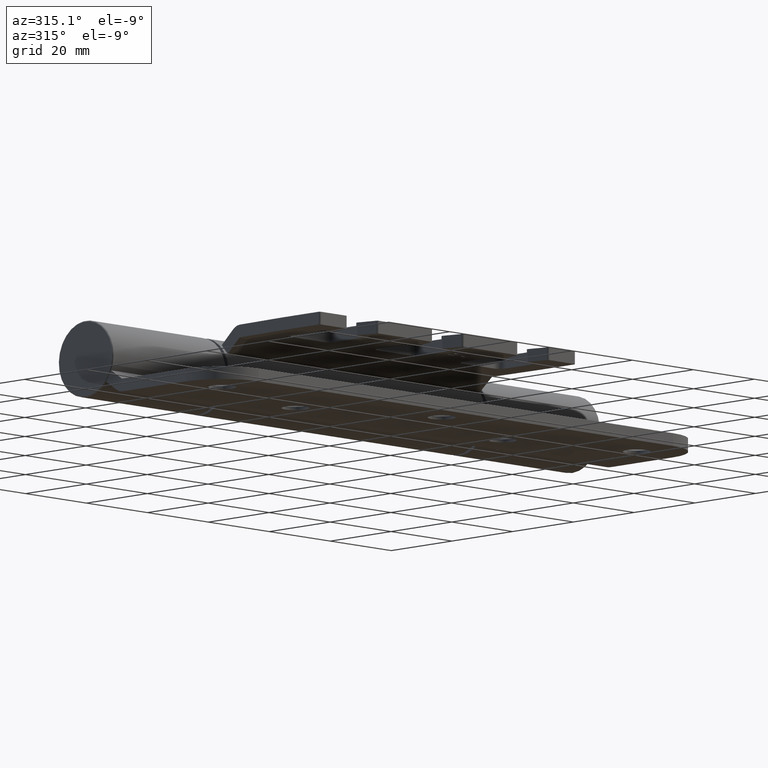
[diagram: clean part render]
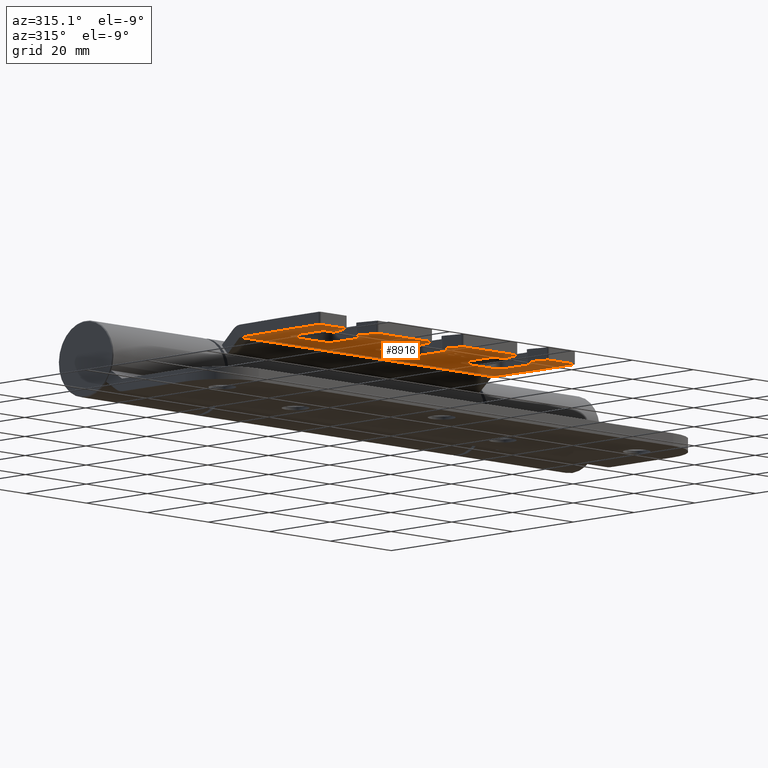
[diagram: same view with one face highlighted and labeled with its STEP entity id]
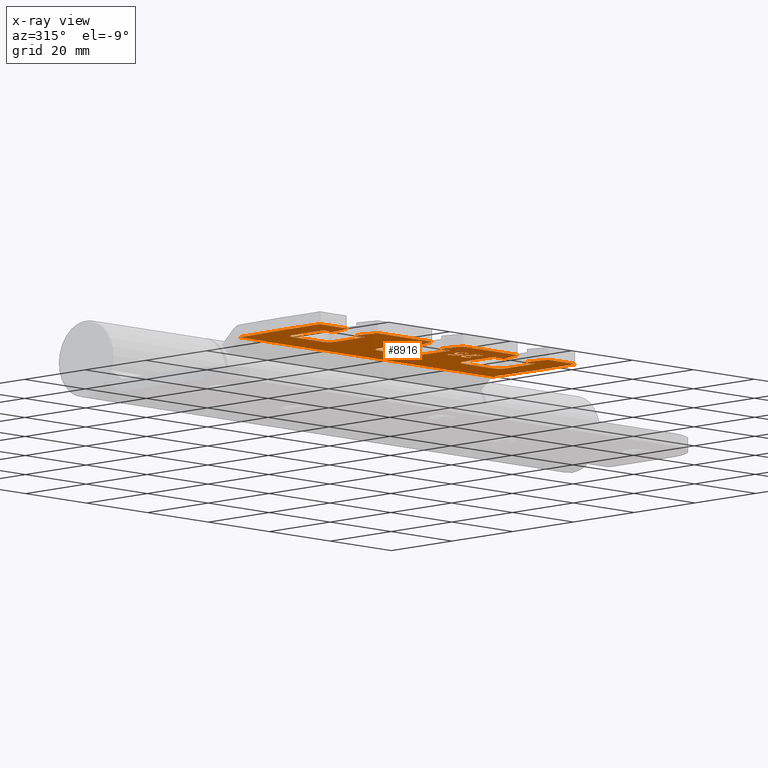
[diagram: x-ray of the same camera — body ghosted, the highlighted face saturated]
A machine part, auxiliary view. The second image highlights one B-rep face of the part: STEP entity #8916.
The next image is the same camera in x-ray: the body ghosted, the highlighted face saturated — about 0% of this face is hidden behind the body in this view.
In plain terms, the highlighted planar face has unit normal (-0, 0, -1).
Its self-contained STEP definition (entity closure, byte-faithful):
#43 = CARTESIAN_POINT ( 'NONE',  ( -28.87569552590387900, -7.999999999999996400, -16.74966175761668900 ) ) ;
#54 = DIRECTION ( 'NONE',  ( 0.0000000000000000000, 0.0000000000000000000, 1.000000000000000000 ) ) ;
#62 = CARTESIAN_POINT ( 'NONE',  ( -54.29411764705874800, -8.000000000000001800, 36.82352941176468200 ) ) ;
#64 = LINE ( 'NONE', #1749, #12614 ) ;
#86 = CARTESIAN_POINT ( 'NONE',  ( -28.20123852969946700, -7.999999999999998200, -16.88209855984302600 ) ) ;
#88 = CARTESIAN_POINT ( 'NONE',  ( -22.99999999999999600, -8.000000000000001800, -20.99999999999999600 ) ) ;
#89 = CARTESIAN_POINT ( 'NONE',  ( -32.55528846153846000, -8.000000000000000000, -17.58673878205127000 ) ) ;
#98 = VERTEX_POINT ( 'NONE', #10311 ) ;
#99 = EDGE_CURVE ( 'NONE', #5834, #5408, #7941, .T. ) ;
#108 = DIRECTION ( 'NONE',  ( 0.0000000000000000000, 1.401298464324817100E-045, 1.000000000000000000 ) ) ;
#120 = VECTOR ( 'NONE', #227, 1000.000000000000000 ) ;
#121 = CARTESIAN_POINT ( 'NONE',  ( -31.78408004148925400, -8.000000000000001800, -17.13884070674496100 ) ) ;
#126 = LINE ( 'NONE', #3033, #3903 ) ;
#153 = CARTESIAN_POINT ( 'NONE',  ( -38.49999999999999300, -8.000000000000001800, -22.60961179679778600 ) ) ;
#170 = CARTESIAN_POINT ( 'NONE',  ( -31.51641984055393700, -8.000000000000000000, -16.88409821350671100 ) ) ;
#181 = CARTESIAN_POINT ( 'NONE',  ( -28.66631901723867100, -7.999999999999998200, -15.55301657363667000 ) ) ;
#182 = CARTESIAN_POINT ( 'NONE',  ( -32.22944192423965900, -7.999999999999998200, -13.53412893234375100 ) ) ;
#191 = DIRECTION ( 'NONE',  ( 0.09950371902099758300, 0.0000000000000000000, -0.9950371902099892600 ) ) ;
#192 = CARTESIAN_POINT ( 'NONE',  ( -29.67059409874661600, -8.000000000000000000, -11.79180907282419700 ) ) ;
#201 = VERTEX_POINT ( 'NONE', #3720 ) ;
#213 = CIRCLE ( 'NONE', #595, 0.5000000000000004400 ) ;
#225 = ORIENTED_EDGE ( 'NONE', *, *, #2400, .F. ) ;
#227 = DIRECTION ( 'NONE',  ( 0.9805806756909202200, 0.0000000000000000000, 0.1961161351381837900 ) ) ;
#231 = CARTESIAN_POINT ( 'NONE',  ( -28.81030092859238700, -8.000000000000000000, -15.34164799476549300 ) ) ;
#232 = CARTESIAN_POINT ( 'NONE',  ( -31.95600700735063500, -7.999999999999998200, -13.62998884621269400 ) ) ;
#255 = ORIENTED_EDGE ( 'NONE', *, *, #5032, .F. ) ;
#268 = LINE ( 'NONE', #6543, #13861 ) ;
#298 = ORIENTED_EDGE ( 'NONE', *, *, #6181, .F. ) ;
#313 = AXIS2_PLACEMENT_3D ( 'NONE', #153, #13102, #7789 ) ;
#314 = CARTESIAN_POINT ( 'NONE',  ( -31.87487822887655000, -8.000000000000000000, -16.36806709264784500 ) ) ;
#336 = CARTESIAN_POINT ( 'NONE',  ( -30.36143851533694600, -7.999999999999996400, -10.71157451280752000 ) ) ;
#354 = CARTESIAN_POINT ( 'NONE',  ( -29.09924347804939900, -8.000000000000000000, -14.47282667948791300 ) ) ;
#371 = EDGE_CURVE ( 'NONE', #4026, #10485, #13347, .T. ) ;
#409 = CARTESIAN_POINT ( 'NONE',  ( -30.43368340993995600, -7.999999999999994700, -12.73763299845836300 ) ) ;
#424 = CARTESIAN_POINT ( 'NONE',  ( -31.13000801282051100, -7.999999999999998200, -16.43389423076921600 ) ) ;
#427 = DIRECTION ( 'NONE',  ( 0.0000000000000000000, 0.0000000000000000000, 1.000000000000000000 ) ) ;
#432 = ORIENTED_EDGE ( 'NONE', *, *, #1295, .T. ) ;
#451 = CARTESIAN_POINT ( 'NONE',  ( -29.91222415633550800, -8.000000000000000000, -15.24173859027935200 ) ) ;
#504 = ORIENTED_EDGE ( 'NONE', *, *, #10371, .F. ) ;
#517 = DIRECTION ( 'NONE',  ( 0.0000000000000000000, 1.000000000000000000, 1.401298464324817400E-045 ) ) ;
#518 = EDGE_CURVE ( 'NONE', #5681, #11515, #3997, .T. ) ;
#537 = EDGE_CURVE ( 'NONE', #12201, #11124, #2628, .T. ) ;
#576 = CARTESIAN_POINT ( 'NONE',  ( -32.41564850834881600, -7.999999999999998200, -10.82604683102626600 ) ) ;
#595 = AXIS2_PLACEMENT_3D ( 'NONE', #11650, #6151, #9228 ) ;
#606 = DIRECTION ( 'NONE',  ( -0.9701425001453322100, 3.944304526105058600E-031, -0.2425356250363319400 ) ) ;
#614 = CARTESIAN_POINT ( 'NONE',  ( -28.06410256410255900, -7.999999999999998200, -13.10256410256408400 ) ) ;
#634 = CARTESIAN_POINT ( 'NONE',  ( -30.66100688145552400, -7.999999999999996400, -15.00902354344872900 ) ) ;
#659 = ORIENTED_EDGE ( 'NONE', *, *, #99, .F. ) ;
#663 = DIRECTION ( 'NONE',  ( 0.0000000000000000000, 1.000000000000000000, 1.401298464324817400E-045 ) ) ;
#670 = ORIENTED_EDGE ( 'NONE', *, *, #11646, .F. ) ;
#673 = EDGE_CURVE ( 'NONE', #7099, #2141, #14182, .T. ) ;
#736 = VERTEX_POINT ( 'NONE', #4842 ) ;
#833 = CARTESIAN_POINT ( 'NONE',  ( -32.48445775863236700, -7.999999999999998200, -12.00935439888613800 ) ) ;
#845 = AXIS2_PLACEMENT_3D ( 'NONE', #10921, #7669, #2397 ) ;
#852 = VECTOR ( 'NONE', #13019, 1000.000000000000000 ) ;
#856 = ORIENTED_EDGE ( 'NONE', *, *, #371, .T. ) ;
#857 = EDGE_CURVE ( 'NONE', #11382, #12711, #1906, .T. ) ;
#870 = VERTEX_POINT ( 'NONE', #2572 ) ;
#876 = LINE ( 'NONE', #13735, #1566 ) ;
#940 = CARTESIAN_POINT ( 'NONE',  ( -20.99999999999999300, -7.999999999999998200, 23.00000000000000700 ) ) ;
#978 = CARTESIAN_POINT ( 'NONE',  ( -32.08664557018889200, -7.999999999999994700, -11.31917269289197300 ) ) ;
#1031 = CARTESIAN_POINT ( 'NONE',  ( -32.99999999999998600, -7.999999999999998200, 32.14038820320222800 ) ) ;
#1035 = CARTESIAN_POINT ( 'NONE',  ( -32.36526151962628700, -8.000000000000001800, -11.61205032363476700 ) ) ;
#1040 = CARTESIAN_POINT ( 'NONE',  ( -29.37357390280477500, -7.999999999999998200, -16.94521136761745700 ) ) ;
#1042 = LINE ( 'NONE', #10781, #852 ) ;
#1045 = VERTEX_POINT ( 'NONE', #9058 ) ;
#1062 = CARTESIAN_POINT ( 'NONE',  ( -38.62126781251816300, -8.000000000000001800, 4.905316953129546000 ) ) ;
#1095 = VERTEX_POINT ( 'NONE', #8127 ) ;
#1118 = CARTESIAN_POINT ( 'NONE',  ( -32.49999999999998600, -7.999999999999998200, 34.50000000000000700 ) ) ;
#1126 = CARTESIAN_POINT ( 'NONE',  ( -28.81434998033595500, -7.999999999999998200, -16.68799757920012500 ) ) ;
#1129 = CARTESIAN_POINT ( 'NONE',  ( -32.77333376119280900, -7.999999999999998200, -17.64117475120493200 ) ) ;
#1154 = DIRECTION ( 'NONE',  ( 0.9701425001453322100, 0.0000000000000000000, -0.2425356250363319400 ) ) ;
#1195 = FACE_BOUND ( 'NONE', #13718, .T. ) ;
#1216 = DIRECTION ( 'NONE',  ( 0.0000000000000000000, 0.0000000000000000000, 1.000000000000000000 ) ) ;
#1267 = CARTESIAN_POINT ( 'NONE',  ( -31.72404327373683900, -7.999999999999998200, -16.18848419721626200 ) ) ;
#1270 = CARTESIAN_POINT ( 'NONE',  ( -31.32593860884613700, -7.999999999999996400, -16.67476256670752500 ) ) ;
#1287 = CARTESIAN_POINT ( 'NONE',  ( -30.94692888850672600, -7.999999999999998200, -10.49900557415207000 ) ) ;
#1295 = EDGE_CURVE ( 'NONE', #7620, #11840, #213, .T. ) ;
#1296 = AXIS2_PLACEMENT_3D ( 'NONE', #1118, #5387, #3222 ) ;
#1299 = CARTESIAN_POINT ( 'NONE',  ( -33.49999999999998600, -7.999999999999998200, 32.14038820320222800 ) ) ;
#1310 = EDGE_CURVE ( 'NONE', #12460, #12653, #2578, .T. ) ;
#1321 = DIRECTION ( 'NONE',  ( 0.0000000000000000000, 0.0000000000000000000, 1.000000000000000000 ) ) ;
#1326 = CARTESIAN_POINT ( 'NONE',  ( -29.38621794871794500, -7.999999999999998200, -15.08974358974357500 ) ) ;
#1332 = CARTESIAN_POINT ( 'NONE',  ( -29.92066590491863200, -7.999999999999998200, -11.12101834534368000 ) ) ;
#1356 = CARTESIAN_POINT ( 'NONE',  ( -32.19000350744961000, -8.000000000000000000, -16.70546726109860500 ) ) ;
#1358 = VERTEX_POINT ( 'NONE', #6252 ) ;
#1360 = CARTESIAN_POINT ( 'NONE',  ( -32.99999999999999300, -7.999999999999998200, 42.00000000000000000 ) ) ;
#1379 = AXIS2_PLACEMENT_3D ( 'NONE', #9570, #1820, #14031 ) ;
#1388 = LINE ( 'NONE', #12485, #12758 ) ;
#1421 = CARTESIAN_POINT ( 'NONE',  ( -29.66798937171582700, -8.000000000000000000, -11.89122326345913400 ) ) ;
#1428 = CARTESIAN_POINT ( 'NONE',  ( -32.06166252031233900, -7.999999999999996400, -10.62127213933985500 ) ) ;
#1506 = CARTESIAN_POINT ( 'NONE',  ( -29.68640152829888400, -8.000000000000000000, -12.17296478569369700 ) ) ;
#1510 = CARTESIAN_POINT ( 'NONE',  ( -32.50555888696051500, -8.000000000000000000, -10.89624771608633200 ) ) ;
#1515 = ORIENTED_EDGE ( 'NONE', *, *, #1310, .F. ) ;
#1534 = CARTESIAN_POINT ( 'NONE',  ( -30.81686184839966100, -7.999999999999996400, -16.07073556043145100 ) ) ;
#1550 = CARTESIAN_POINT ( 'NONE',  ( -29.66751956966084700, -7.999999999999998200, -11.98049628299986600 ) ) ;
#1563 = CARTESIAN_POINT ( 'NONE',  ( -32.49999999999997900, -7.999999999999998200, 21.00000000000001800 ) ) ;
#1566 = VECTOR ( 'NONE', #6053, 1000.000000000000200 ) ;
#1567 = CARTESIAN_POINT ( 'NONE',  ( -32.33322520430067500, -7.999999999999998200, -10.76460260352396100 ) ) ;
#1593 = CIRCLE ( 'NONE', #13845, 0.5000000000000004400 ) ;
#1599 = VERTEX_POINT ( 'NONE', #13105 ) ;
#1601 = CARTESIAN_POINT ( 'NONE',  ( -21.35294117647066500, -8.000000000000001800, -28.58823529411765900 ) ) ;
#1604 = CARTESIAN_POINT ( 'NONE',  ( -33.06265834993825300, -7.999999999999998200, -12.06076830647187500 ) ) ;
#1619 = ORIENTED_EDGE ( 'NONE', *, *, #673, .F. ) ;
#1631 = CARTESIAN_POINT ( 'NONE',  ( -32.99999999999999300, -7.999999999999998200, -21.49999999999998600 ) ) ;
#1656 = EDGE_CURVE ( 'NONE', #13438, #2642, #6800, .T. ) ;
#1660 = DIRECTION ( 'NONE',  ( 0.0000000000000000000, 0.0000000000000000000, 1.000000000000000000 ) ) ;
#1680 = CARTESIAN_POINT ( 'NONE',  ( -30.95099702220240800, -7.999999999999994700, -15.29452409234100500 ) ) ;
#1719 = VECTOR ( 'NONE', #7024, 1000.000000000000000 ) ;
#1722 = CARTESIAN_POINT ( 'NONE',  ( -33.49999999999999300, -7.999999999999998200, 4.140388203202228100 ) ) ;
#1723 = VERTEX_POINT ( 'NONE', #2523 ) ;
#1727 = CARTESIAN_POINT ( 'NONE',  ( -30.11707316428442400, -8.000000000000000000, -14.62708803938092600 ) ) ;
#1743 = CARTESIAN_POINT ( 'NONE',  ( -31.28525641025640200, -7.999999999999998200, -10.47435897435895700 ) ) ;
#1749 = CARTESIAN_POINT ( 'NONE',  ( -32.99999999999998600, -7.999999999999998200, 98.00000000000000000 ) ) ;
#1765 = CARTESIAN_POINT ( 'NONE',  ( -29.97018266612976900, -7.999999999999996400, -14.55894728611579400 ) ) ;
#1796 = EDGE_CURVE ( 'NONE', #8062, #6336, #5513, .T. ) ;
#1798 = ORIENTED_EDGE ( 'NONE', *, *, #6146, .T. ) ;
#1812 = CIRCLE ( 'NONE', #313, 0.5000000000000004400 ) ;
#1820 = DIRECTION ( 'NONE',  ( -0.0000000000000000000, -1.000000000000000000, -1.401298464324817400E-045 ) ) ;
#1822 = CIRCLE ( 'NONE', #12252, 1.999999999999994900 ) ;
#1842 = CARTESIAN_POINT ( 'NONE',  ( -32.99999999999998600, -7.999999999999998200, 21.50000000000000400 ) ) ;
#1906 = CIRCLE ( 'NONE', #3328, 0.5000000000000004400 ) ;
#1914 = VECTOR ( 'NONE', #11418, 1000.000000000000000 ) ;
#1916 = CARTESIAN_POINT ( 'NONE',  ( -31.79740964023130400, -8.000000000000000000, -11.18023929019309300 ) ) ;
#1951 = DIRECTION ( 'NONE',  ( -0.9701425001453322100, 3.944304526105058600E-031, -0.2425356250363319400 ) ) ;
#1987 = DIRECTION ( 'NONE',  ( 0.0000000000000000000, 1.000000000000000000, 1.401298464324817400E-045 ) ) ;
#1997 = CARTESIAN_POINT ( 'NONE',  ( -33.06410256410256200, -7.999999999999996400, -12.12600160256408400 ) ) ;
#1998 = PLANE ( 'NONE',  #14097 ) ;
#2000 = EDGE_CURVE ( 'NONE', #8594, #10362, #4681, .T. ) ;
#2003 = CARTESIAN_POINT ( 'NONE',  ( -31.28255715871698700, -8.000000000000000000, -11.11612048247084600 ) ) ;
#2040 = CARTESIAN_POINT ( 'NONE',  ( -22.99999999999998600, -8.000000000000001800, 33.00000000000001400 ) ) ;
#2049 = CARTESIAN_POINT ( 'NONE',  ( -30.31337409107001000, -7.999999999999998200, -11.68347916527712000 ) ) ;
#2060 = CIRCLE ( 'NONE', #13512, 1.999999999999996700 ) ;
#2070 = CARTESIAN_POINT ( 'NONE',  ( -28.70954465945395700, -7.999999999999998200, -16.54838737841212600 ) ) ;
#2071 = CARTESIAN_POINT ( 'NONE',  ( -33.06301101071603200, -8.000000000000000000, -12.17980866830898600 ) ) ;
#2093 = CARTESIAN_POINT ( 'NONE',  ( -30.87596309017218800, -8.000000000000001800, -11.17632265536763500 ) ) ;
#2112 = CARTESIAN_POINT ( 'NONE',  ( -28.60808278113452000, -7.999999999999996400, -16.29776071388389300 ) ) ;
#2120 = DIRECTION ( 'NONE',  ( 0.0000000000000000000, 0.0000000000000000000, 1.000000000000000000 ) ) ;
#2138 = CARTESIAN_POINT ( 'NONE',  ( -30.28278663056291400, -8.000000000000000000, -11.78190978300456700 ) ) ;
#2141 = VERTEX_POINT ( 'NONE', #940 ) ;
#2153 = LINE ( 'NONE', #5161, #8348 ) ;
#2155 = CARTESIAN_POINT ( 'NONE',  ( -22.99999999999998900, -8.000000000000001800, 21.00000000000001800 ) ) ;
#2158 = CARTESIAN_POINT ( 'NONE',  ( -28.04854958775312200, -7.999999999999998200, -16.47334232017195900 ) ) ;
#2177 = EDGE_CURVE ( 'NONE', #10485, #13146, #13286, .T. ) ;
#2195 = CARTESIAN_POINT ( 'NONE',  ( -30.69056082817639500, -8.000000000000000000, -11.25569878296097800 ) ) ;
#2199 = AXIS2_PLACEMENT_3D ( 'NONE', #9373, #517, #2783 ) ;
#2206 = ORIENTED_EDGE ( 'NONE', *, *, #9328, .T. ) ;
#2214 = CARTESIAN_POINT ( 'NONE',  ( -29.41025641025640500, -7.999999999999998200, -17.58974358974357300 ) ) ;
#2248 = CARTESIAN_POINT ( 'NONE',  ( -32.99999999999999300, -7.999999999999998200, -6.499999999999992000 ) ) ;
#2271 = B_SPLINE_CURVE_WITH_KNOTS ( 'NONE', 3,
 ( #2214, #6652, #7686, #3284, #4290, #6510, #4437, #7634, #14297, #8770, #6461, #86, #12015, #3377, #2158, #13138, #13234, #10992, #8670 ),
 .UNSPECIFIED., .F., .F.,
 ( 4, 1, 1, 1, 1, 1, 1, 1, 1, 1, 1, 1, 1, 1, 1, 1, 4 ),
 ( 0.0000000000000000000, 0.07068138743020767300, 0.1375045554742054500, 0.2014902066313329600, 0.2628919997675160400, 0.3225779132397238500, 0.3810011130629186700, 0.4382199268490179500, 0.4957945977218506900, 0.5534655231038843000, 0.6116894700116123400, 0.6706153249251978200, 0.7315637921644571100, 0.7941654377814075800, 0.8594329861261566000, 0.9282014418018246200, 1.000000000000000000 ),
 .UNSPECIFIED. ) ;
#2294 = AXIS2_PLACEMENT_3D ( 'NONE', #1722, #10275, #13819 ) ;
#2307 = CARTESIAN_POINT ( 'NONE',  ( -31.62586186652600200, -7.999999999999998200, -13.03211437824194800 ) ) ;
#2322 = LINE ( 'NONE', #3985, #11637 ) ;
#2333 = LINE ( 'NONE', #12829, #3214 ) ;
#2340 = CARTESIAN_POINT ( 'NONE',  ( -32.99999999999998600, -7.999999999999998200, 23.85961179679782500 ) ) ;
#2349 = ORIENTED_EDGE ( 'NONE', *, *, #4577, .T. ) ;
#2352 = CARTESIAN_POINT ( 'NONE',  ( -29.30298631202378700, -7.999999999999996400, -15.09180510430377400 ) ) ;
#2361 = AXIS2_PLACEMENT_3D ( 'NONE', #5506, #13383, #54 ) ;
#2371 = VERTEX_POINT ( 'NONE', #10908 ) ;
#2391 = EDGE_CURVE ( 'NONE', #11630, #8594, #14205, .T. ) ;
#2393 = DIRECTION ( 'NONE',  ( 0.0000000000000000000, 0.0000000000000000000, -1.000000000000000000 ) ) ;
#2397 = DIRECTION ( 'NONE',  ( 0.0000000000000000000, 0.0000000000000000000, 1.000000000000000000 ) ) ;
#2400 = EDGE_CURVE ( 'NONE', #13638, #13679, #1388, .T. ) ;
#2404 = CARTESIAN_POINT ( 'NONE',  ( -29.07128230254689800, -8.000000000000001800, -15.15195497763421400 ) ) ;
#2413 = VERTEX_POINT ( 'NONE', #3622 ) ;
#2414 = CARTESIAN_POINT ( 'NONE',  ( -30.63788725643251000, -7.999999999999996400, -10.57786148638415100 ) ) ;
#2418 = EDGE_CURVE ( 'NONE', #7620, #8615, #7189, .T. ) ;
#2436 = CARTESIAN_POINT ( 'NONE',  ( -31.80338300344175200, -7.999999999999998200, -16.28491478344994900 ) ) ;
#2463 = DIRECTION ( 'NONE',  ( 0.0000000000000000000, 1.000000000000000000, 1.401298464324817400E-045 ) ) ;
#2467 = EDGE_CURVE ( 'NONE', #8379, #1599, #12739, .T. ) ;
#2469 = CARTESIAN_POINT ( 'NONE',  ( -31.45030271842681900, -7.999999999999996400, -10.47770464994345800 ) ) ;
#2491 = CARTESIAN_POINT ( 'NONE',  ( -32.99999999999999300, -7.999999999999998200, 70.00000000000000000 ) ) ;
#2499 = VERTEX_POINT ( 'NONE', #2340 ) ;
#2503 = CARTESIAN_POINT ( 'NONE',  ( -28.70512820512819700, -7.999999999999998200, -12.57872596153844400 ) ) ;
#2523 = CARTESIAN_POINT ( 'NONE',  ( -22.99999999999999300, -8.000000000000001800, 35.00000000000000000 ) ) ;
#2536 = CARTESIAN_POINT ( 'NONE',  ( -31.07585784217613400, -7.999999999999996400, -16.36955870141126800 ) ) ;
#2546 = VECTOR ( 'NONE', #13913, 999.9999999999998900 ) ;
#2572 = CARTESIAN_POINT ( 'NONE',  ( -39.00000000000000000, -7.999999999999998200, -5.390388203202159700 ) ) ;
#2578 = LINE ( 'NONE', #10488, #11375 ) ;
#2586 = B_SPLINE_CURVE_WITH_KNOTS ( 'NONE', 3,
 ( #7395, #7532, #833, #2971, #8664, #10838, #1035, #8505, #4085, #10691, #978, #11856, #6410, #1916, #11804, #9625, #5195, #9768, #5239 ),
 .UNSPECIFIED., .F., .F.,
 ( 4, 1, 1, 1, 1, 1, 1, 1, 1, 1, 1, 1, 1, 1, 1, 1, 4 ),
 ( 0.0000000000000000000, 0.06580103760947253500, 0.1286767959489732700, 0.1886758749524335700, 0.2475984367338941700, 0.3048494201188282600, 0.3617858992828984500, 0.4195227063685899000, 0.4786818154207392900, 0.5387695030440194900, 0.5987990560131536400, 0.6601842815006805400, 0.7229515306109684000, 0.7879926891048759700, 0.8554037684344736300, 0.9261530612840045400, 1.000000000000000000 ),
 .UNSPECIFIED. ) ;
#2588 = CARTESIAN_POINT ( 'NONE',  ( -30.97158825379240800, -7.999999999999998200, -16.24567655875546300 ) ) ;
#2606 = CARTESIAN_POINT ( 'NONE',  ( -32.98351903824495700, -7.999999999999998200, -11.57035669669232700 ) ) ;
#2628 = LINE ( 'NONE', #3427, #10383 ) ;
#2634 = CARTESIAN_POINT ( 'NONE',  ( -38.50000000000000000, -8.000000000000001800, -42.00000000000000000 ) ) ;
#2635 = EDGE_CURVE ( 'NONE', #201, #9750, #4276, .T. ) ;
#2636 = DIRECTION ( 'NONE',  ( 0.0000000000000000000, 1.401298464324817100E-045, 1.000000000000000000 ) ) ;
#2642 = VERTEX_POINT ( 'NONE', #3400 ) ;
#2653 = B_SPLINE_CURVE_WITH_KNOTS ( 'NONE', 3,
 ( #8980, #10085, #13273, #4475, #7728, #12330, #121, #3421, #13455, #170, #3516, #1270, #11216, #9950, #3367 ),
 .UNSPECIFIED., .F., .F.,
 ( 4, 1, 1, 1, 1, 1, 1, 1, 1, 1, 1, 1, 4 ),
 ( 0.0000000000000000000, 0.1003958053692366500, 0.2044223945985638200, 0.3109890257635843900, 0.4224687447083747000, 0.4810013788192103500, 0.5432032916293425600, 0.6094696992077599500, 0.6795301504461721500, 0.7538224337262109400, 0.8316278262887669700, 0.9138061284747212000, 1.000000000000000000 ),
 .UNSPECIFIED. ) ;
#2661 = AXIS2_PLACEMENT_3D ( 'NONE', #13992, #9683, #7301 ) ;
#2677 = EDGE_CURVE ( 'NONE', #12460, #1599, #2887, .T. ) ;
#2684 = DIRECTION ( 'NONE',  ( 0.9701425001453322100, 0.0000000000000000000, -0.2425356250363319400 ) ) ;
#2715 = CARTESIAN_POINT ( 'NONE',  ( -32.49999999999998600, -7.999999999999998200, 21.50000000000000400 ) ) ;
#2724 = CARTESIAN_POINT ( 'NONE',  ( -30.24508613076977800, -7.999999999999998200, -12.16883210611353400 ) ) ;
#2748 = B_SPLINE_CURVE_WITH_KNOTS ( 'NONE', 3,
 ( #10700, #2307, #11105, #5473, #4363, #10870, #6387, #4271, #7660, #5323, #11887, #9848, #7461, #14271, #3259, #12094, #4318, #9707, #10818 ),
 .UNSPECIFIED., .F., .F.,
 ( 4, 1, 1, 1, 1, 1, 1, 1, 1, 1, 1, 1, 1, 1, 1, 1, 4 ),
 ( 0.0000000000000000000, 0.07736133711897480400, 0.1504798322806794300, 0.2199772368520747100, 0.2866809968624409700, 0.3496784941856622100, 0.4106796250174858400, 0.4694271135192895600, 0.5267557014271285800, 0.5831419808348368200, 0.6388244277786271400, 0.6952634704038124200, 0.7526958048985353800, 0.8108491833348952000, 0.8713563036360838500, 0.9344364309841278700, 1.000000000000000000 ),
 .UNSPECIFIED. ) ;
#2783 = DIRECTION ( 'NONE',  ( 0.0000000000000000000, 0.0000000000000000000, 1.000000000000000000 ) ) ;
#2795 = DIRECTION ( 'NONE',  ( 0.0000000000000000000, 0.0000000000000000000, 1.000000000000000000 ) ) ;
#2806 = DIRECTION ( 'NONE',  ( -0.0000000000000000000, -1.401298464324817100E-045, -1.000000000000000000 ) ) ;
#2809 = CARTESIAN_POINT ( 'NONE',  ( -31.43149038461538000, -7.999999999999998200, -15.83593749999998400 ) ) ;
#2837 = VECTOR ( 'NONE', #6972, 1000.000000000000000 ) ;
#2887 = CIRCLE ( 'NONE', #11834, 0.5000000000000004400 ) ;
#2892 = CARTESIAN_POINT ( 'NONE',  ( -39.00000000000000000, -7.999999999999998200, -6.999999999999982200 ) ) ;
#2902 = ORIENTED_EDGE ( 'NONE', *, *, #11970, .T. ) ;
#2910 = CARTESIAN_POINT ( 'NONE',  ( -32.99999999999999300, -7.999999999999998200, -32.14038820320217800 ) ) ;
#2919 = CARTESIAN_POINT ( 'NONE',  ( -39.00000000000000000, -7.999999999999998200, 42.00000000000000000 ) ) ;
#2925 = CARTESIAN_POINT ( 'NONE',  ( -38.99999999999999300, -7.999999999999998200, 7.000000000000016900 ) ) ;
#2940 = CARTESIAN_POINT ( 'NONE',  ( -32.49999999999998600, -7.999999999999998200, 35.00000000000001400 ) ) ;
#2949 = CARTESIAN_POINT ( 'NONE',  ( -32.99999999999998600, -7.999999999999998200, 98.00000000000000000 ) ) ;
#2963 = ORIENTED_EDGE ( 'NONE', *, *, #8351, .F. ) ;
#2971 = CARTESIAN_POINT ( 'NONE',  ( -32.46922698408322800, -7.999999999999996400, -11.90092868772461200 ) ) ;
#2980 = LINE ( 'NONE', #2925, #9536 ) ;
#2994 = VERTEX_POINT ( 'NONE', #5895 ) ;
#3000 = DIRECTION ( 'NONE',  ( 0.0000000000000000000, -1.401298464324817400E-045, -1.000000000000000000 ) ) ;
#3033 = CARTESIAN_POINT ( 'NONE',  ( -31.65384615384615000, -7.999999999999998200, -13.67948717948715900 ) ) ;
#3063 = EDGE_LOOP ( 'NONE', ( #6271, #13812, #12819, #4945, #11676, #7193, #5779, #4453, #3471, #7544, #4758, #3731, #2206 ) ) ;
#3065 = LINE ( 'NONE', #4063, #2546 ) ;
#3089 = DIRECTION ( 'NONE',  ( 0.0000000000000000000, 1.000000000000000000, 1.401298464324817400E-045 ) ) ;
#3098 = ORIENTED_EDGE ( 'NONE', *, *, #7942, .T. ) ;
#3100 = CARTESIAN_POINT ( 'NONE',  ( -31.65384615384615000, -7.999999999999998200, -13.67948717948715900 ) ) ;
#3101 = CARTESIAN_POINT ( 'NONE',  ( -27.10942061642034100, -8.000000000000003600, -42.00000000000000000 ) ) ;
#3132 = CARTESIAN_POINT ( 'NONE',  ( -33.06410256410256200, -7.999999999999996400, -12.12600160256408400 ) ) ;
#3142 = CIRCLE ( 'NONE', #2199, 0.5000000000000004400 ) ;
#3152 = DIRECTION ( 'NONE',  ( 0.0000000000000000000, 0.0000000000000000000, 1.000000000000000000 ) ) ;
#3153 = DIRECTION ( 'NONE',  ( 0.0000000000000000000, 0.0000000000000000000, 1.000000000000000000 ) ) ;
#3181 = VERTEX_POINT ( 'NONE', #8682 ) ;
#3214 = VECTOR ( 'NONE', #11758, 1000.000000000000200 ) ;
#3222 = DIRECTION ( 'NONE',  ( 0.0000000000000000000, 0.0000000000000000000, 1.000000000000000000 ) ) ;
#3259 = CARTESIAN_POINT ( 'NONE',  ( -32.45633583519330000, -7.999999999999996400, -12.38757917706582600 ) ) ;
#3284 = CARTESIAN_POINT ( 'NONE',  ( -29.08829947151624800, -7.999999999999996400, -17.53863690009259800 ) ) ;
#3310 = CARTESIAN_POINT ( 'NONE',  ( -30.24687425463094600, -7.999999999999998200, -12.00084365016701700 ) ) ;
#3328 = AXIS2_PLACEMENT_3D ( 'NONE', #2715, #13580, #12507 ) ;
#3330 = CARTESIAN_POINT ( 'NONE',  ( -32.59114130599011400, -8.000000000000000000, -17.59821967954060500 ) ) ;
#3336 = ORIENTED_EDGE ( 'NONE', *, *, #10668, .F. ) ;
#3343 = CARTESIAN_POINT ( 'NONE',  ( -33.62126781251817000, -7.999999999999998200, -31.65531695312951400 ) ) ;
#3359 = DIRECTION ( 'NONE',  ( 0.0000000000000000000, -1.401298464324817400E-045, -1.000000000000000000 ) ) ;
#3367 = CARTESIAN_POINT ( 'NONE',  ( -31.13000801282051100, -7.999999999999998200, -16.43389423076921600 ) ) ;
#3377 = CARTESIAN_POINT ( 'NONE',  ( -28.08750942431499100, -7.999999999999998200, -16.61863948073548500 ) ) ;
#3398 = EDGE_CURVE ( 'NONE', #12295, #8615, #9751, .T. ) ;
#3400 = CARTESIAN_POINT ( 'NONE',  ( -33.06410256410256200, -7.999999999999996400, -12.12600160256408400 ) ) ;
#3415 = CARTESIAN_POINT ( 'NONE',  ( -31.63369606312316100, -7.999999999999998200, -16.08204269445497300 ) ) ;
#3421 = CARTESIAN_POINT ( 'NONE',  ( -31.69633419508683400, -7.999999999999996400, -17.06299975381521300 ) ) ;
#3427 = CARTESIAN_POINT ( 'NONE',  ( -39.00000000000000000, -7.999999999999998200, 42.00000000000000000 ) ) ;
#3434 = CARTESIAN_POINT ( 'NONE',  ( -32.84875976700713800, -7.999999999999996400, -12.98016792496479600 ) ) ;
#3471 = ORIENTED_EDGE ( 'NONE', *, *, #4238, .T. ) ;
#3479 = CARTESIAN_POINT ( 'NONE',  ( -28.57928203418635200, -7.999999999999998200, -15.90342511204143400 ) ) ;
#3480 = CARTESIAN_POINT ( 'NONE',  ( -32.47057936608319300, -7.999999999999994700, -13.39060331529400300 ) ) ;
#3481 = CARTESIAN_POINT ( 'NONE',  ( -32.96190204402978500, -8.000000000000000000, -17.65391308358568900 ) ) ;
#3483 = ORIENTED_EDGE ( 'NONE', *, *, #6317, .T. ) ;
#3506 = CARTESIAN_POINT ( 'NONE',  ( -29.38020833333333200, -8.000000000000000000, -14.44871794871793600 ) ) ;
#3514 = CIRCLE ( 'NONE', #7895, 0.5000000000000004400 ) ;
#3516 = CARTESIAN_POINT ( 'NONE',  ( -31.42266458209589400, -7.999999999999996400, -16.78316227336959100 ) ) ;
#3523 = CARTESIAN_POINT ( 'NONE',  ( -28.70833313155819900, -7.999999999999998200, -15.47802468616766600 ) ) ;
#3531 = CARTESIAN_POINT ( 'NONE',  ( -30.23562158567389000, -8.000000000000001800, -10.79816520123474000 ) ) ;
#3544 = ORIENTED_EDGE ( 'NONE', *, *, #5674, .F. ) ;
#3549 = CARTESIAN_POINT ( 'NONE',  ( -28.96652432126321100, -8.000000000000001800, -14.50423915296850900 ) ) ;
#3578 = ORIENTED_EDGE ( 'NONE', *, *, #857, .T. ) ;
#3584 = CARTESIAN_POINT ( 'NONE',  ( -29.84212152287722500, -7.999999999999996400, -11.24285283933993700 ) ) ;
#3588 = B_SPLINE_CURVE_WITH_KNOTS ( 'NONE', 3,
 ( #9012, #12364, #2469, #9064, #10167, #6905, #1428, #13575, #1567, #576, #9198 ),
 .UNSPECIFIED., .F., .F.,
 ( 4, 1, 1, 1, 1, 1, 1, 1, 4 ),
 ( 0.0000000000000000000, 0.1324702944791600900, 0.2616666311771870800, 0.3875720710229662600, 0.5110290449571821500, 0.6326513119273601300, 0.7546442917994753400, 0.8765146957733891400, 0.9999999999999998900 ),
 .UNSPECIFIED. ) ;
#3589 = LINE ( 'NONE', #9267, #9417 ) ;
#3599 = DIRECTION ( 'NONE',  ( 0.0000000000000000000, 1.401298464324817100E-045, 1.000000000000000000 ) ) ;
#3603 = CARTESIAN_POINT ( 'NONE',  ( -28.00291971446853300, -7.999999999999996400, -15.81673296430155600 ) ) ;
#3605 = VERTEX_POINT ( 'NONE', #11668 ) ;
#3609 = EDGE_CURVE ( 'NONE', #7446, #12255, #5982, .T. ) ;
#3622 = CARTESIAN_POINT ( 'NONE',  ( -39.00000000000000000, -7.999999999999998200, 22.60961179679782900 ) ) ;
#3654 = VECTOR ( 'NONE', #8014, 1000.000000000000000 ) ;
#3720 = CARTESIAN_POINT ( 'NONE',  ( -38.62126781251815500, -8.000000000000001800, 32.90531695312954200 ) ) ;
#3725 = ORIENTED_EDGE ( 'NONE', *, *, #1796, .F. ) ;
#3731 = ORIENTED_EDGE ( 'NONE', *, *, #11251, .T. ) ;
#3753 = EDGE_CURVE ( 'NONE', #5547, #13397, #8732, .T. ) ;
#3761 = CARTESIAN_POINT ( 'NONE',  ( -29.85323912002101900, -8.000000000000000000, -12.61997240337114700 ) ) ;
#3772 = DIRECTION ( 'NONE',  ( 0.0000000000000000000, 1.000000000000000000, 1.401298464324817400E-045 ) ) ;
#3771 = B_SPLINE_CURVE_WITH_KNOTS ( 'NONE', 3,
 ( #6963, #12568, #12432, #8056, #8152, #1765, #1727, #7139, #6143, #13692, #634, #8207, #12663, #1680, #12767, #6054, #9406, #10526, #2809 ),
 .UNSPECIFIED., .F., .F.,
 ( 4, 1, 1, 1, 1, 1, 1, 1, 1, 1, 1, 1, 1, 1, 1, 1, 4 ),
 ( 0.0000000000000000000, 0.05793850229453301200, 0.1160048650255967900, 0.1747141667953217000, 0.2345648890010947300, 0.2968629730595208100, 0.3640898838124855800, 0.4362130384354016600, 0.5140337745724474800, 0.5567448540274844100, 0.6046196190772369400, 0.6574330823476020000, 0.7157818483276945400, 0.7788641238553579700, 0.8475179623204689400, 0.9212368947961906400, 1.000000000000000000 ),
 .UNSPECIFIED. ) ;
#3798 = CARTESIAN_POINT ( 'NONE',  ( -29.64616217493376000, -7.999999999999998200, -15.12665194581015100 ) ) ;
#3810 = VERTEX_POINT ( 'NONE', #12987 ) ;
#3821 = ORIENTED_EDGE ( 'NONE', *, *, #8779, .F. ) ;
#3825 = CARTESIAN_POINT ( 'NONE',  ( -22.99999999999998600, -8.000000000000001800, -4.999999999999992900 ) ) ;
#3849 = CARTESIAN_POINT ( 'NONE',  ( -29.66666666666666400, -8.000000000000000000, -11.94170673076921400 ) ) ;
#3903 = VECTOR ( 'NONE', #10746, 1000.000000000000200 ) ;
#3932 = CARTESIAN_POINT ( 'NONE',  ( -29.47214327995156300, -7.999999999999998200, -15.09184673816372100 ) ) ;
#3950 = LINE ( 'NONE', #9217, #12406 ) ;
#3985 = CARTESIAN_POINT ( 'NONE',  ( -39.00000000000000000, -7.999999999999998200, -42.00000000000000000 ) ) ;
#3994 = CARTESIAN_POINT ( 'NONE',  ( -29.41025641025640500, -7.999999999999998200, -17.58974358974357300 ) ) ;
#3997 = LINE ( 'NONE', #14142, #8297 ) ;
#3999 = CIRCLE ( 'NONE', #845, 0.5000000000000004400 ) ;
#4022 = CARTESIAN_POINT ( 'NONE',  ( -38.99999999999998600, -7.999999999999998200, 21.00000000000001800 ) ) ;
#4026 = VERTEX_POINT ( 'NONE', #9116 ) ;
#4063 = CARTESIAN_POINT ( 'NONE',  ( -54.29411764705876200, -8.000000000000001800, -19.17647058823532200 ) ) ;
#4085 = CARTESIAN_POINT ( 'NONE',  ( -32.24505376507862300, -7.999999999999998200, -11.45161766620974200 ) ) ;
#4111 = CARTESIAN_POINT ( 'NONE',  ( -20.99999999999999600, -7.999999999999998200, -4.999999999999992900 ) ) ;
#4114 = AXIS2_PLACEMENT_3D ( 'NONE', #10601, #663, #10509 ) ;
#4183 = CARTESIAN_POINT ( 'NONE',  ( -32.49999999999998600, -7.999999999999998200, 7.000000000000016900 ) ) ;
#4193 = DIRECTION ( 'NONE',  ( 0.0000000000000000000, 0.0000000000000000000, 1.000000000000000000 ) ) ;
#4205 = EDGE_CURVE ( 'NONE', #2141, #4590, #6815, .T. ) ;
#4238 = EDGE_CURVE ( 'NONE', #13397, #9766, #12080, .T. ) ;
#4261 = VERTEX_POINT ( 'NONE', #8621 ) ;
#4271 = CARTESIAN_POINT ( 'NONE',  ( -32.13581723205725600, -8.000000000000000000, -12.84632787830276800 ) ) ;
#4272 = CARTESIAN_POINT ( 'NONE',  ( -30.78030005418602900, -7.999999999999996400, -11.21263284888995700 ) ) ;
#4273 = ORIENTED_EDGE ( 'NONE', *, *, #2635, .F. ) ;
#4276 = LINE ( 'NONE', #62, #4785 ) ;
#4290 = CARTESIAN_POINT ( 'NONE',  ( -28.94183810067085400, -7.999999999999998200, -17.49405240891666200 ) ) ;
#4312 = CARTESIAN_POINT ( 'NONE',  ( -30.00020032051281400, -7.999999999999998200, -12.83313301282049500 ) ) ;
#4318 = CARTESIAN_POINT ( 'NONE',  ( -32.48438914901621600, -7.999999999999996400, -12.21401810135373700 ) ) ;
#4363 = CARTESIAN_POINT ( 'NONE',  ( -31.89229419600755100, -8.000000000000000000, -12.96568611652897100 ) ) ;
#4366 = CARTESIAN_POINT ( 'NONE',  ( -30.46331863476030900, -7.999999999999996400, -11.43419122198658400 ) ) ;
#4437 = CARTESIAN_POINT ( 'NONE',  ( -28.67771905135464300, -7.999999999999998200, -17.37395452940883400 ) ) ;
#4453 = ORIENTED_EDGE ( 'NONE', *, *, #3753, .T. ) ;
#4467 = CARTESIAN_POINT ( 'NONE',  ( -38.62126781251816300, -8.000000000000001800, -4.905316953129514000 ) ) ;
#4475 = CARTESIAN_POINT ( 'NONE',  ( -32.20501435377103400, -8.000000000000000000, -17.43501014874914300 ) ) ;
#4486 = CARTESIAN_POINT ( 'NONE',  ( -31.70573262705104900, -7.999999999999996400, -13.67372556177688200 ) ) ;
#4489 = VECTOR ( 'NONE', #191, 1000.000000000000100 ) ;
#4507 = DIRECTION ( 'NONE',  ( 0.0000000000000000000, 1.000000000000000000, -1.401298464324817100E-045 ) ) ;
#4533 = CARTESIAN_POINT ( 'NONE',  ( -32.67999762545093000, -8.000000000000000000, -13.20416102173810700 ) ) ;
#4541 = CARTESIAN_POINT ( 'NONE',  ( -30.01350678329111000, -8.000000000000000000, -11.00544532033785600 ) ) ;
#4577 = EDGE_CURVE ( 'NONE', #14286, #4026, #4726, .T. ) ;
#4578 = CARTESIAN_POINT ( 'NONE',  ( -28.75458690455984400, -7.999999999999998200, -15.40604548773712600 ) ) ;
#4579 = CARTESIAN_POINT ( 'NONE',  ( -32.09606333497001900, -8.000000000000001800, -13.58630509475831600 ) ) ;
#4590 = VERTEX_POINT ( 'NONE', #2155 ) ;
#4634 = VECTOR ( 'NONE', #11560, 1000.000000000000000 ) ;
#4640 = CARTESIAN_POINT ( 'NONE',  ( -31.22710105345235100, -7.999999999999998200, -10.47570061294138100 ) ) ;
#4659 = CARTESIAN_POINT ( 'NONE',  ( -32.99999999999998600, -7.999999999999998200, 34.50000000000000000 ) ) ;
#4678 = CARTESIAN_POINT ( 'NONE',  ( -31.28525641025640200, -7.999999999999998200, -10.47435897435895700 ) ) ;
#4681 = B_SPLINE_CURVE_WITH_KNOTS ( 'NONE', 3,
 ( #11142, #1421, #192, #5786, #9103, #10198, #3584, #1332, #4541, #9005, #3531, #336, #13475, #2414, #11286, #1287, #10007, #4640, #4678 ),
 .UNSPECIFIED., .F., .F.,
 ( 4, 1, 1, 1, 1, 1, 1, 1, 1, 1, 1, 1, 1, 1, 1, 1, 4 ),
 ( 0.0000000000000000000, 0.06200200824418389300, 0.1220969912679822200, 0.1813887365371145700, 0.2395257372398063300, 0.2978577442691965900, 0.3569063875964430000, 0.4173127131204461000, 0.4796759129874170700, 0.5425402243790362600, 0.6047737989556515300, 0.6670033183911637800, 0.7302332083749710800, 0.7941945628083727500, 0.8603996747248484600, 0.9285728932039980500, 1.000000000000000000 ),
 .UNSPECIFIED. ) ;
#4726 = LINE ( 'NONE', #6786, #120 ) ;
#4758 = ORIENTED_EDGE ( 'NONE', *, *, #5351, .T. ) ;
#4781 = CIRCLE ( 'NONE', #8588, 0.5000000000000004400 ) ;
#4785 = VECTOR ( 'NONE', #1154, 999.9999999999998900 ) ;
#4834 = CARTESIAN_POINT ( 'NONE',  ( -30.24796574974073600, -7.999999999999996400, -12.26474656507636100 ) ) ;
#4842 = CARTESIAN_POINT ( 'NONE',  ( -31.58974358974358400, -7.999999999999998200, -13.03846153846151900 ) ) ;
#4849 = B_SPLINE_CURVE_WITH_KNOTS ( 'NONE', 3,
 ( #12417, #13536, #3603, #11352, #5615, #6911, #5667, #13354, #7905, #6772, #6862, #9019, #8928, #12317, #3549, #354, #10071, #11257, #3506 ),
 .UNSPECIFIED., .F., .F.,
 ( 4, 1, 1, 1, 1, 1, 1, 1, 1, 1, 1, 1, 1, 1, 1, 1, 4 ),
 ( 0.0000000000000000000, 0.07469771656662804700, 0.1455115918500483900, 0.2132985842839106300, 0.2785622169315308800, 0.3420292975867187400, 0.4041935375329118700, 0.4653552088380745200, 0.5268569228324767600, 0.5875969951741313300, 0.6466379139557685300, 0.7045917700031265600, 0.7617171626766964200, 0.8194521176356897000, 0.8780625371641144200, 0.9378073099419026400, 1.000000000000000000 ),
 .UNSPECIFIED. ) ;
#4869 = CARTESIAN_POINT ( 'NONE',  ( -33.62126781251814800, -7.999999999999998200, 31.65531695312955000 ) ) ;
#4886 = AXIS2_PLACEMENT_3D ( 'NONE', #9778, #12068, #4193 ) ;
#4926 = ORIENTED_EDGE ( 'NONE', *, *, #2391, .T. ) ;
#4941 = CARTESIAN_POINT ( 'NONE',  ( -39.00000000000000000, -7.999999999999998200, 42.00000000000000000 ) ) ;
#4945 = ORIENTED_EDGE ( 'NONE', *, *, #5576, .T. ) ;
#4980 = ORIENTED_EDGE ( 'NONE', *, *, #12016, .F. ) ;
#5016 = VERTEX_POINT ( 'NONE', #6297 ) ;
#5030 = ORIENTED_EDGE ( 'NONE', *, *, #13540, .F. ) ;
#5031 = CARTESIAN_POINT ( 'NONE',  ( -20.99999999999999600, -7.999999999999998200, 70.00000000000000000 ) ) ;
#5032 = EDGE_CURVE ( 'NONE', #9896, #1723, #13711, .T. ) ;
#5043 = CARTESIAN_POINT ( 'NONE',  ( -30.24358974358974100, -7.999999999999998200, -12.11899038461536500 ) ) ;
#5055 = VERTEX_POINT ( 'NONE', #5043 ) ;
#5092 = ORIENTED_EDGE ( 'NONE', *, *, #10421, .T. ) ;
#5141 = DIRECTION ( 'NONE',  ( -1.000000000000000000, -0.0000000000000000000, -0.0000000000000000000 ) ) ;
#5150 = ORIENTED_EDGE ( 'NONE', *, *, #13797, .F. ) ;
#5152 = DIRECTION ( 'NONE',  ( 1.000000000000000000, 0.0000000000000000000, 0.0000000000000000000 ) ) ;
#5161 = CARTESIAN_POINT ( 'NONE',  ( -12.18030679136777500, -7.999999999999998200, 42.00000000000000000 ) ) ;
#5163 = ORIENTED_EDGE ( 'NONE', *, *, #12531, .F. ) ;
#5187 = DIRECTION ( 'NONE',  ( 1.000000000000000000, 0.0000000000000000000, 0.0000000000000000000 ) ) ;
#5189 = CARTESIAN_POINT ( 'NONE',  ( -38.50000000000000000, -8.000000000000001800, -5.390388203202173000 ) ) ;
#5195 = CARTESIAN_POINT ( 'NONE',  ( -31.44983602334465500, -7.999999999999996400, -11.11729977022183700 ) ) ;
#5205 = DIRECTION ( 'NONE',  ( -1.000000000000000000, -0.0000000000000000000, -0.0000000000000000000 ) ) ;
#5209 = CARTESIAN_POINT ( 'NONE',  ( -39.00000000000000000, -7.999999999999998200, -20.99999999999998200 ) ) ;
#5239 = CARTESIAN_POINT ( 'NONE',  ( -31.32331730769230700, -7.999999999999998200, -11.11538461538459700 ) ) ;
#5257 = EDGE_CURVE ( 'NONE', #98, #1045, #13116, .T. ) ;
#5273 = DIRECTION ( 'NONE',  ( 0.0000000000000000000, 0.0000000000000000000, -1.000000000000000000 ) ) ;
#5297 = CARTESIAN_POINT ( 'NONE',  ( -28.75803294109141800, -7.999999999999998200, -16.62142796201532500 ) ) ;
#5299 = VERTEX_POINT ( 'NONE', #11898 ) ;
#5318 = VERTEX_POINT ( 'NONE', #10325 ) ;
#5323 = CARTESIAN_POINT ( 'NONE',  ( -32.26253413349046200, -8.000000000000000000, -12.73935925944263800 ) ) ;
#5345 = DIRECTION ( 'NONE',  ( -1.000000000000000000, 0.0000000000000000000, 0.0000000000000000000 ) ) ;
#5351 = EDGE_CURVE ( 'NONE', #12014, #7718, #2271, .T. ) ;
#5376 = CARTESIAN_POINT ( 'NONE',  ( -30.24470424939988400, -7.999999999999996400, -12.07890063599212000 ) ) ;
#5377 = DIRECTION ( 'NONE',  ( -0.9701425001453322100, 3.944304526105058600E-031, -0.2425356250363319400 ) ) ;
#5387 = DIRECTION ( 'NONE',  ( -0.0000000000000000000, -1.000000000000000000, -1.401298464324817400E-045 ) ) ;
#5403 = ORIENTED_EDGE ( 'NONE', *, *, #3398, .T. ) ;
#5408 = VERTEX_POINT ( 'NONE', #10896 ) ;
#5445 = CARTESIAN_POINT ( 'NONE',  ( -28.66863022414434800, -7.999999999999996400, -16.47004467049641000 ) ) ;
#5472 = ORIENTED_EDGE ( 'NONE', *, *, #14020, .T. ) ;
#5473 = CARTESIAN_POINT ( 'NONE',  ( -31.79781469196855800, -7.999999999999994700, -12.99624108962327200 ) ) ;
#5495 = CARTESIAN_POINT ( 'NONE',  ( -29.18459486854233000, -8.000000000000000000, -16.91250849072516300 ) ) ;
#5506 = CARTESIAN_POINT ( 'NONE',  ( -22.99999999999998900, -8.000000000000001800, -32.99999999999999300 ) ) ;
#5513 = LINE ( 'NONE', #5209, #11893 ) ;
#5526 = CARTESIAN_POINT ( 'NONE',  ( -30.24358974358974100, -7.999999999999998200, -12.11899038461536500 ) ) ;
#5538 = VERTEX_POINT ( 'NONE', #14077 ) ;
#5546 = CARTESIAN_POINT ( 'NONE',  ( -32.66232610263783400, -7.999999999999996400, -17.62101467295358500 ) ) ;
#5547 = VERTEX_POINT ( 'NONE', #13068 ) ;
#5549 = LINE ( 'NONE', #13468, #1914 ) ;
#5576 = EDGE_CURVE ( 'NONE', #11515, #1095, #10457, .T. ) ;
#5577 = CARTESIAN_POINT ( 'NONE',  ( -28.06410256410255900, -7.999999999999998200, -10.73076923076921200 ) ) ;
#5615 = CARTESIAN_POINT ( 'NONE',  ( -28.05340114677847700, -7.999999999999994700, -15.49776956538456000 ) ) ;
#5620 = DIRECTION ( 'NONE',  ( 0.0000000000000000000, 1.000000000000000000, 1.401298464324817400E-045 ) ) ;
#5630 = CARTESIAN_POINT ( 'NONE',  ( -32.99999999999999300, -7.999999999999998200, 6.500000000000005300 ) ) ;
#5667 = CARTESIAN_POINT ( 'NONE',  ( -28.15267227385849600, -7.999999999999996400, -15.21484215448524300 ) ) ;
#5674 = EDGE_CURVE ( 'NONE', #2413, #14192, #10800, .T. ) ;
#5681 = VERTEX_POINT ( 'NONE', #5810 ) ;
#5685 = CARTESIAN_POINT ( 'NONE',  ( -29.22230198453506100, -8.000000000000000000, -15.10476103859743800 ) ) ;
#5705 = CARTESIAN_POINT ( 'NONE',  ( -38.99999999999999300, -7.999999999999998200, 33.39038820320222800 ) ) ;
#5737 = DIRECTION ( 'NONE',  ( 0.0000000000000000000, 1.000000000000000000, 1.401298464324817400E-045 ) ) ;
#5744 = DIRECTION ( 'NONE',  ( 0.0000000000000000000, 0.0000000000000000000, 1.000000000000000000 ) ) ;
#5750 = EDGE_CURVE ( 'NONE', #2371, #7118, #7003, .T. ) ;
#5779 = ORIENTED_EDGE ( 'NONE', *, *, #8665, .T. ) ;
#5786 = CARTESIAN_POINT ( 'NONE',  ( -29.69199526506521300, -7.999999999999996400, -11.64531886726035600 ) ) ;
#5809 = VERTEX_POINT ( 'NONE', #8381 ) ;
#5810 = CARTESIAN_POINT ( 'NONE',  ( -32.35897435897435800, -7.999999999999998200, -14.38461538461536900 ) ) ;
#5834 = VERTEX_POINT ( 'NONE', #4111 ) ;
#5849 = CARTESIAN_POINT ( 'NONE',  ( -29.47435897435896700, -7.999999999999998200, -16.94871794871793100 ) ) ;
#5863 = CARTESIAN_POINT ( 'NONE',  ( -30.67318961699921000, -7.999999999999998200, -15.91095543425849900 ) ) ;
#5864 = CARTESIAN_POINT ( 'NONE',  ( -28.57692307692307300, -7.999999999999998200, -16.00120192307690600 ) ) ;
#5880 = B_SPLINE_CURVE_WITH_KNOTS ( 'NONE', 3,
 ( #8796, #2003, #12043, #8747, #10875, #2093, #4272, #2195, #10970, #7570, #4366, #6590, #10821, #2049, #2138, #9892, #3310, #5376, #5526 ),
 .UNSPECIFIED., .F., .F.,
 ( 4, 1, 1, 1, 1, 1, 1, 1, 1, 1, 1, 1, 1, 1, 1, 1, 4 ),
 ( 0.0000000000000000000, 0.07286593345653762100, 0.1418868719641280000, 0.2074526264147125200, 0.2704376800000988800, 0.3316408722476713600, 0.3901075774931586600, 0.4480692869488371900, 0.5055029519245388700, 0.5624881528337245500, 0.6190843288847304200, 0.6764155306922398100, 0.7354523604507931000, 0.7962407694486795000, 0.8604056780892038700, 0.9283049272851061600, 1.000000000000000000 ),
 .UNSPECIFIED. ) ;
#5895 = CARTESIAN_POINT ( 'NONE',  ( -31.32331730769230700, -7.999999999999998200, -11.11538461538459700 ) ) ;
#5897 = LINE ( 'NONE', #5031, #11088 ) ;
#5915 = CARTESIAN_POINT ( 'NONE',  ( -30.09496891558659100, -8.000000000000000000, -15.36257023060284000 ) ) ;
#5928 = CARTESIAN_POINT ( 'NONE',  ( -38.49999999999999300, -8.000000000000001800, 5.390388203202212100 ) ) ;
#5929 = EDGE_CURVE ( 'NONE', #13230, #9750, #12541, .T. ) ;
#5961 = CARTESIAN_POINT ( 'NONE',  ( -27.99999999999999300, -7.999999999999998200, -15.98717948717947100 ) ) ;
#5972 = EDGE_CURVE ( 'NONE', #12974, #6892, #1812, .T. ) ;
#5982 = CIRCLE ( 'NONE', #7564, 0.5000000000000004400 ) ;
#6012 = CARTESIAN_POINT ( 'NONE',  ( -30.00246045088699600, -7.999999999999998200, -15.29716432146801200 ) ) ;
#6017 = VERTEX_POINT ( 'NONE', #13000 ) ;
#6019 = ORIENTED_EDGE ( 'NONE', *, *, #14119, .T. ) ;
#6052 = EDGE_CURVE ( 'NONE', #10362, #13438, #3588, .T. ) ;
#6053 = DIRECTION ( 'NONE',  ( 0.09950371902099731900, 0.0000000000000000000, -0.9950371902099892600 ) ) ;
#6054 = CARTESIAN_POINT ( 'NONE',  ( -31.17952516299588000, -7.999999999999996400, -15.54318782319606600 ) ) ;
#6077 = DIRECTION ( 'NONE',  ( -0.0000000000000000000, -1.000000000000000000, -1.401298464324817400E-045 ) ) ;
#6096 = CARTESIAN_POINT ( 'NONE',  ( -29.38621794871794500, -7.999999999999998200, -15.08974358974357500 ) ) ;
#6103 = ORIENTED_EDGE ( 'NONE', *, *, #2177, .T. ) ;
#6125 = EDGE_CURVE ( 'NONE', #3605, #13679, #2153, .T. ) ;
#6140 = CARTESIAN_POINT ( 'NONE',  ( -29.55854590726929100, -7.999999999999998200, -15.10591191174414900 ) ) ;
#6143 = CARTESIAN_POINT ( 'NONE',  ( -30.42072663360376000, -8.000000000000000000, -14.81589830190454500 ) ) ;
#6146 = EDGE_CURVE ( 'NONE', #6608, #736, #126, .T. ) ;
#6151 = DIRECTION ( 'NONE',  ( 0.0000000000000000000, 1.000000000000000000, 1.401298464324817400E-045 ) ) ;
#6173 = ORIENTED_EDGE ( 'NONE', *, *, #5257, .F. ) ;
#6181 = EDGE_CURVE ( 'NONE', #5408, #5299, #11820, .T. ) ;
#6191 = VECTOR ( 'NONE', #13823, 1000.000000000000000 ) ;
#6199 = CARTESIAN_POINT ( 'NONE',  ( -12.18030679136777600, -7.999999999999998200, -41.47866385739927600 ) ) ;
#6227 = ORIENTED_EDGE ( 'NONE', *, *, #9459, .F. ) ;
#6252 = CARTESIAN_POINT ( 'NONE',  ( -32.55528846153846000, -8.000000000000000000, -17.58673878205127000 ) ) ;
#6271 = ORIENTED_EDGE ( 'NONE', *, *, #8517, .T. ) ;
#6297 = CARTESIAN_POINT ( 'NONE',  ( -22.99999999999999600, -8.000000000000001800, -34.99999999999998600 ) ) ;
#6317 = EDGE_CURVE ( 'NONE', #2642, #6608, #10201, .T. ) ;
#6336 = VERTEX_POINT ( 'NONE', #88 ) ;
#6343 = EDGE_CURVE ( 'NONE', #11736, #11630, #6984, .T. ) ;
#6351 = VERTEX_POINT ( 'NONE', #424 ) ;
#6387 = CARTESIAN_POINT ( 'NONE',  ( -32.06112363942173000, -7.999999999999998200, -12.89054501359466400 ) ) ;
#6397 = DIRECTION ( 'NONE',  ( 0.0000000000000000000, 1.000000000000000000, 1.401298464324817400E-045 ) ) ;
#6410 = CARTESIAN_POINT ( 'NONE',  ( -31.90010266152053100, -8.000000000000000000, -11.21884550673490600 ) ) ;
#6419 = CARTESIAN_POINT ( 'NONE',  ( -29.01878524565557200, -8.000000000000000000, -16.84729056944946600 ) ) ;
#6432 = EDGE_CURVE ( 'NONE', #11382, #2499, #64, .T. ) ;
#6437 = EDGE_CURVE ( 'NONE', #13871, #8922, #14005, .T. ) ;
#6461 = CARTESIAN_POINT ( 'NONE',  ( -28.27381061528992100, -7.999999999999994700, -17.00111222174343700 ) ) ;
#6469 = DIRECTION ( 'NONE',  ( 1.000000000000000000, 0.0000000000000000000, 0.0000000000000000000 ) ) ;
#6483 = CARTESIAN_POINT ( 'NONE',  ( -27.10942061642033000, -8.000000000000003600, 42.00000000000000000 ) ) ;
#6491 = ORIENTED_EDGE ( 'NONE', *, *, #7650, .T. ) ;
#6507 = VECTOR ( 'NONE', #2636, 1000.000000000000000 ) ;
#6510 = CARTESIAN_POINT ( 'NONE',  ( -28.80441760850865100, -7.999999999999998200, -17.44054389844008000 ) ) ;
#6532 = CARTESIAN_POINT ( 'NONE',  ( -33.49999999999999300, -7.999999999999998200, -32.14038820320218500 ) ) ;
#6543 = CARTESIAN_POINT ( 'NONE',  ( -39.00000000000000000, -7.999999999999998200, 42.00000000000000000 ) ) ;
#6544 = CARTESIAN_POINT ( 'NONE',  ( -21.35294117647065400, -8.000000000000001800, 27.41176470588234100 ) ) ;
#6590 = CARTESIAN_POINT ( 'NONE',  ( -30.40531157549217800, -8.000000000000000000, -11.51047775669307100 ) ) ;
#6607 = DIRECTION ( 'NONE',  ( 1.000000000000000000, 0.0000000000000000000, 0.0000000000000000000 ) ) ;
#6608 = VERTEX_POINT ( 'NONE', #3100 ) ;
#6613 = EDGE_CURVE ( 'NONE', #6664, #10794, #4781, .T. ) ;
#6646 = VECTOR ( 'NONE', #5141, 1000.000000000000000 ) ;
#6652 = CARTESIAN_POINT ( 'NONE',  ( -29.35438896833752800, -7.999999999999998200, -17.58318567571483000 ) ) ;
#6664 = VERTEX_POINT ( 'NONE', #3343 ) ;
#6682 = ORIENTED_EDGE ( 'NONE', *, *, #8600, .T. ) ;
#6687 = ORIENTED_EDGE ( 'NONE', *, *, #2677, .T. ) ;
#6699 = CARTESIAN_POINT ( 'NONE',  ( -33.04231507756875200, -7.999999999999998200, -12.43918259176956200 ) ) ;
#6708 = CARTESIAN_POINT ( 'NONE',  ( -32.49999999999999300, -7.999999999999998200, -20.99999999999998200 ) ) ;
#6735 = CARTESIAN_POINT ( 'NONE',  ( -31.93708014389248000, -8.000000000000000000, -16.43972461441197900 ) ) ;
#6751 = CARTESIAN_POINT ( 'NONE',  ( -32.58043427380252400, -8.000000000000001800, -13.30361382387375500 ) ) ;
#6754 = VERTEX_POINT ( 'NONE', #5705 ) ;
#6772 = CARTESIAN_POINT ( 'NONE',  ( -28.39459912088249600, -8.000000000000000000, -14.86123718005029200 ) ) ;
#6785 = CARTESIAN_POINT ( 'NONE',  ( -32.35897435897435800, -7.999999999999998200, -16.83052884615383200 ) ) ;
#6786 = CARTESIAN_POINT ( 'NONE',  ( -30.62820512820512100, -7.999999999999998200, -13.61538461538459700 ) ) ;
#6791 = CARTESIAN_POINT ( 'NONE',  ( -28.57772131782582600, -7.999999999999998200, -15.96811550344382300 ) ) ;
#6797 = CARTESIAN_POINT ( 'NONE',  ( -30.69230769230768600, -7.999999999999998200, -12.97435897435895700 ) ) ;
#6800 = B_SPLINE_CURVE_WITH_KNOTS ( 'NONE', 3,
 ( #11512, #1510, #9188, #13705, #7069, #10302, #2606, #8167, #13750, #1604, #1997 ),
 .UNSPECIFIED., .F., .F.,
 ( 4, 1, 1, 1, 1, 1, 1, 1, 4 ),
 ( 0.0000000000000000000, 0.1278926194654210500, 0.2515785135038584000, 0.3727928197023028200, 0.4927776986078535300, 0.6135900692425720900, 0.7378086492801454500, 0.8661799015391674600, 1.000000000000000000 ),
 .UNSPECIFIED. ) ;
#6815 = CIRCLE ( 'NONE', #2661, 1.999999999999994900 ) ;
#6851 = LINE ( 'NONE', #4941, #13928 ) ;
#6862 = CARTESIAN_POINT ( 'NONE',  ( -28.49630627990955400, -7.999999999999998200, -14.76436353659417800 ) ) ;
#6872 = CARTESIAN_POINT ( 'NONE',  ( -31.53512690983962900, -7.999999999999998200, -15.96324270090414600 ) ) ;
#6892 = VERTEX_POINT ( 'NONE', #10597 ) ;
#6897 = CARTESIAN_POINT ( 'NONE',  ( -28.70512820512819700, -7.999999999999998200, -12.57872596153844400 ) ) ;
#6905 = CARTESIAN_POINT ( 'NONE',  ( -31.91710465263278400, -8.000000000000000000, -10.56849003767179700 ) ) ;
#6908 = ORIENTED_EDGE ( 'NONE', *, *, #7014, .T. ) ;
#6911 = CARTESIAN_POINT ( 'NONE',  ( -28.09617778054332900, -8.000000000000000000, -15.35158758611159900 ) ) ;
#6948 = ORIENTED_EDGE ( 'NONE', *, *, #10994, .F. ) ;
#6963 = CARTESIAN_POINT ( 'NONE',  ( -29.38020833333333200, -8.000000000000000000, -14.44871794871793600 ) ) ;
#6972 = DIRECTION ( 'NONE',  ( -0.9812462574000521100, 0.0000000000000000000, -0.1927583521884092500 ) ) ;
#6984 = LINE ( 'NONE', #2503, #2837 ) ;
#7003 = CIRCLE ( 'NONE', #2294, 0.5000000000000004400 ) ;
#7004 = CARTESIAN_POINT ( 'NONE',  ( -30.24358974358974100, -7.999999999999998200, -12.11899038461536500 ) ) ;
#7010 = DIRECTION ( 'NONE',  ( 0.0000000000000000000, 1.000000000000000000, 1.401298464324817400E-045 ) ) ;
#7012 = CARTESIAN_POINT ( 'NONE',  ( -30.62820512820512100, -7.999999999999998200, -13.61538461538459700 ) ) ;
#7014 = EDGE_CURVE ( 'NONE', #5318, #12201, #10985, .T. ) ;
#7024 = DIRECTION ( 'NONE',  ( -1.000000000000000000, 0.0000000000000000000, 0.0000000000000000000 ) ) ;
#7050 = CARTESIAN_POINT ( 'NONE',  ( -30.59565812191139900, -8.000000000000001800, -12.90790451793925100 ) ) ;
#7058 = LINE ( 'NONE', #10137, #12771 ) ;
#7069 = CARTESIAN_POINT ( 'NONE',  ( -32.82954611952099100, -7.999999999999998200, -11.25109799892929600 ) ) ;
#7073 = DIRECTION ( 'NONE',  ( 0.0000000000000000000, 0.0000000000000000000, 1.000000000000000000 ) ) ;
#7090 = ORIENTED_EDGE ( 'NONE', *, *, #6052, .T. ) ;
#7099 = VERTEX_POINT ( 'NONE', #11916 ) ;
#7118 = VERTEX_POINT ( 'NONE', #13035 ) ;
#7139 = CARTESIAN_POINT ( 'NONE',  ( -30.26762609144520500, -7.999999999999996400, -14.71100878025108500 ) ) ;
#7154 = CARTESIAN_POINT ( 'NONE',  ( -38.62126781251817700, -8.000000000000001800, -32.90531695312952100 ) ) ;
#7174 = VECTOR ( 'NONE', #3599, 1000.000000000000000 ) ;
#7189 = LINE ( 'NONE', #2919, #4634 ) ;
#7191 = ORIENTED_EDGE ( 'NONE', *, *, #2467, .F. ) ;
#7193 = ORIENTED_EDGE ( 'NONE', *, *, #7539, .T. ) ;
#7229 = ORIENTED_EDGE ( 'NONE', *, *, #12544, .T. ) ;
#7248 = VECTOR ( 'NONE', #2795, 1000.000000000000000 ) ;
#7250 = EDGE_CURVE ( 'NONE', #1095, #1358, #8079, .T. ) ;
#7301 = DIRECTION ( 'NONE',  ( 0.0000000000000000000, 0.0000000000000000000, 1.000000000000000000 ) ) ;
#7310 = ORIENTED_EDGE ( 'NONE', *, *, #14007, .F. ) ;
#7395 = CARTESIAN_POINT ( 'NONE',  ( -32.48717948717948200, -7.999999999999998200, -12.12199519230767400 ) ) ;
#7403 = DIRECTION ( 'NONE',  ( 0.0000000000000000000, 0.0000000000000000000, 1.000000000000000000 ) ) ;
#7446 = VERTEX_POINT ( 'NONE', #4183 ) ;
#7461 = CARTESIAN_POINT ( 'NONE',  ( -32.40052234220328100, -8.000000000000000000, -12.54289416502435900 ) ) ;
#7511 = CARTESIAN_POINT ( 'NONE',  ( -39.00000000000000000, -7.999999999999998200, 42.00000000000000000 ) ) ;
#7532 = CARTESIAN_POINT ( 'NONE',  ( -32.48625859784616000, -7.999999999999998200, -12.08388349109898900 ) ) ;
#7537 = CARTESIAN_POINT ( 'NONE',  ( -29.27617707360270000, -7.999999999999998200, -16.93365425479635200 ) ) ;
#7539 = EDGE_CURVE ( 'NONE', #1358, #6351, #2653, .T. ) ;
#7544 = ORIENTED_EDGE ( 'NONE', *, *, #7792, .T. ) ;
#7564 = AXIS2_PLACEMENT_3D ( 'NONE', #11569, #6077, #13520 ) ;
#7570 = CARTESIAN_POINT ( 'NONE',  ( -30.53201698947346500, -8.000000000000000000, -11.36715265043242900 ) ) ;
#7584 = CARTESIAN_POINT ( 'NONE',  ( -38.62126781251816300, -8.000000000000001800, -23.09468304687045800 ) ) ;
#7620 = VERTEX_POINT ( 'NONE', #7867 ) ;
#7634 = CARTESIAN_POINT ( 'NONE',  ( -28.56128023348894400, -7.999999999999996400, -17.29675690407378900 ) ) ;
#7650 = EDGE_CURVE ( 'NONE', #13146, #11736, #7058, .T. ) ;
#7651 = LINE ( 'NONE', #4022, #6646 ) ;
#7660 = CARTESIAN_POINT ( 'NONE',  ( -32.20180367894438700, -7.999999999999994700, -12.79418280387557200 ) ) ;
#7669 = DIRECTION ( 'NONE',  ( -0.0000000000000000000, -1.000000000000000000, -1.401298464324817400E-045 ) ) ;
#7682 = AXIS2_PLACEMENT_3D ( 'NONE', #11314, #7010, #8007 ) ;
#7686 = CARTESIAN_POINT ( 'NONE',  ( -29.24570366877232200, -7.999999999999996400, -17.57042781843237100 ) ) ;
#7690 = CARTESIAN_POINT ( 'NONE',  ( -32.88583382771449200, -7.999999999999998200, -17.65404671873160700 ) ) ;
#7699 = FACE_BOUND ( 'NONE', #3063, .T. ) ;
#7701 = VECTOR ( 'NONE', #5377, 999.9999999999998900 ) ;
#7718 = VERTEX_POINT ( 'NONE', #5961 ) ;
#7728 = CARTESIAN_POINT ( 'NONE',  ( -32.03461868031579500, -7.999999999999998200, -17.33066781321212700 ) ) ;
#7789 = DIRECTION ( 'NONE',  ( 0.0000000000000000000, 0.0000000000000000000, 1.000000000000000000 ) ) ;
#7792 = EDGE_CURVE ( 'NONE', #9766, #12014, #876, .T. ) ;
#7821 = CARTESIAN_POINT ( 'NONE',  ( -28.93352464888073400, -8.000000000000001800, -15.23118232593774100 ) ) ;
#7822 = CARTESIAN_POINT ( 'NONE',  ( -31.80789038131200300, -8.000000000000000000, -13.66238168176661500 ) ) ;
#7853 = CARTESIAN_POINT ( 'NONE',  ( -33.49999999999998600, -7.999999999999998200, 23.85961179679781800 ) ) ;
#7856 = EDGE_CURVE ( 'NONE', #10467, #14016, #2060, .T. ) ;
#7862 = CARTESIAN_POINT ( 'NONE',  ( -31.43149038461538000, -7.999999999999998200, -15.83593749999998400 ) ) ;
#7867 = CARTESIAN_POINT ( 'NONE',  ( -39.00000000000000000, -7.999999999999998200, -33.39038820320216400 ) ) ;
#7871 = ORIENTED_EDGE ( 'NONE', *, *, #537, .T. ) ;
#7878 = CARTESIAN_POINT ( 'NONE',  ( -28.59066237286250700, -7.999999999999998200, -15.80865229612286900 ) ) ;
#7883 = ORIENTED_EDGE ( 'NONE', *, *, #13874, .T. ) ;
#7895 = AXIS2_PLACEMENT_3D ( 'NONE', #7853, #5620, #1216 ) ;
#7905 = CARTESIAN_POINT ( 'NONE',  ( -28.30147476740653500, -7.999999999999998200, -14.96866095345992100 ) ) ;
#7941 = CIRCLE ( 'NONE', #11814, 1.999999999999996700 ) ;
#7942 = EDGE_CURVE ( 'NONE', #12280, #14286, #9648, .T. ) ;
#7953 = CARTESIAN_POINT ( 'NONE',  ( -32.30421992667086800, -8.000000000000000000, -16.79000306297358200 ) ) ;
#7969 = CARTESIAN_POINT ( 'NONE',  ( -32.99999999999999300, -7.999999999999998200, -34.49999999999999300 ) ) ;
#7972 = CARTESIAN_POINT ( 'NONE',  ( -28.06410256410255900, -7.999999999999998200, -10.73076923076921200 ) ) ;
#8007 = DIRECTION ( 'NONE',  ( 0.0000000000000000000, 0.0000000000000000000, 1.000000000000000000 ) ) ;
#8014 = DIRECTION ( 'NONE',  ( -0.0000000000000000000, -1.401298464324817100E-045, -1.000000000000000000 ) ) ;
#8039 = ORIENTED_EDGE ( 'NONE', *, *, #5929, .T. ) ;
#8050 = CARTESIAN_POINT ( 'NONE',  ( -30.51024125653204800, -7.999999999999996400, -12.82729785831652500 ) ) ;
#8056 = CARTESIAN_POINT ( 'NONE',  ( -29.67667944954125400, -7.999999999999994700, -14.47469786300142000 ) ) ;
#8062 = VERTEX_POINT ( 'NONE', #6708 ) ;
#8068 = CARTESIAN_POINT ( 'NONE',  ( -29.71216039079526900, -7.999999999999998200, -12.28691486966533300 ) ) ;
#8077 = EDGE_LOOP ( 'NONE', ( #225, #6948, #5403, #12792, #432, #7310, #11974, #11355, #12864, #9868, #670, #10156, #8992, #3725, #13093, #2963, #10321, #3821, #8574, #5163, #6019, #1515, #6687, #7191, #2902, #298, #659, #5030, #8099, #4980, #8605, #11241, #8631, #13249, #7883, #3544, #12515, #6173, #7229, #12953, #3578, #3336, #9636, #1619, #5150, #255, #11618, #10776, #8039, #4273, #5472, #6227, #6908, #7871, #504, #11964 ) ) ;
#8079 = B_SPLINE_CURVE_WITH_KNOTS ( 'NONE', 3,
 ( #10046, #3481, #7690, #1129, #5546, #3330, #89 ),
 .UNSPECIFIED., .F., .F.,
 ( 4, 1, 1, 1, 4 ),
 ( 0.0000000000000000000, 0.2526433275832421500, 0.5044398525799811400, 0.7504068042814622300, 1.000000000000000000 ),
 .UNSPECIFIED. ) ;
#8099 = ORIENTED_EDGE ( 'NONE', *, *, #7856, .F. ) ;
#8115 = CARTESIAN_POINT ( 'NONE',  ( -29.66921810054525100, -7.999999999999996400, -12.05774451979281100 ) ) ;
#8127 = CARTESIAN_POINT ( 'NONE',  ( -32.99999999999999300, -7.999999999999998200, -17.65384615384613900 ) ) ;
#8143 = CIRCLE ( 'NONE', #1379, 0.5000000000000004400 ) ;
#8152 = CARTESIAN_POINT ( 'NONE',  ( -29.82342737519784500, -8.000000000000000000, -14.50998445268994700 ) ) ;
#8161 = CARTESIAN_POINT ( 'NONE',  ( -29.79605147277794700, -7.999999999999998200, -12.51026739070580600 ) ) ;
#8167 = CARTESIAN_POINT ( 'NONE',  ( -33.02917137454609500, -8.000000000000000000, -11.74678622434084500 ) ) ;
#8202 = CARTESIAN_POINT ( 'NONE',  ( -30.27105216770353400, -8.000000000000001800, -12.40222504798788900 ) ) ;
#8203 = CARTESIAN_POINT ( 'NONE',  ( -32.45713141025640900, -7.999999999999998200, -10.85697115384613600 ) ) ;
#8207 = CARTESIAN_POINT ( 'NONE',  ( -30.75104319467048300, -7.999999999999998200, -15.09203693166697800 ) ) ;
#8297 = VECTOR ( 'NONE', #5345, 1000.000000000000000 ) ;
#8348 = VECTOR ( 'NONE', #12936, 1000.000000000000000 ) ;
#8351 = EDGE_CURVE ( 'NONE', #4261, #13586, #1042, .T. ) ;
#8376 = LINE ( 'NONE', #13490, #7174 ) ;
#8379 = VERTEX_POINT ( 'NONE', #2248 ) ;
#8381 = CARTESIAN_POINT ( 'NONE',  ( -32.48717948717948200, -7.999999999999998200, -12.12199519230767400 ) ) ;
#8446 = DIRECTION ( 'NONE',  ( 0.0000000000000000000, 0.0000000000000000000, 1.000000000000000000 ) ) ;
#8505 = CARTESIAN_POINT ( 'NONE',  ( -32.30866916435543600, -8.000000000000000000, -11.52988496455677000 ) ) ;
#8517 = EDGE_CURVE ( 'NONE', #6017, #5538, #12539, .T. ) ;
#8571 = LINE ( 'NONE', #1360, #6507 ) ;
#8574 = ORIENTED_EDGE ( 'NONE', *, *, #5972, .T. ) ;
#8588 = AXIS2_PLACEMENT_3D ( 'NONE', #6532, #9598, #3152 ) ;
#8594 = VERTEX_POINT ( 'NONE', #3849 ) ;
#8600 = EDGE_CURVE ( 'NONE', #5055, #12280, #13564, .T. ) ;
#8605 = ORIENTED_EDGE ( 'NONE', *, *, #3609, .T. ) ;
#8615 = VERTEX_POINT ( 'NONE', #12612 ) ;
#8621 = CARTESIAN_POINT ( 'NONE',  ( -32.99999999999999300, -7.999999999999998200, -23.85961179679777500 ) ) ;
#8631 = ORIENTED_EDGE ( 'NONE', *, *, #5750, .T. ) ;
#8643 = EDGE_CURVE ( 'NONE', #5016, #8922, #3950, .T. ) ;
#8664 = CARTESIAN_POINT ( 'NONE',  ( -32.44411320137180600, -8.000000000000000000, -11.79851182227408700 ) ) ;
#8665 = EDGE_CURVE ( 'NONE', #6351, #5547, #10408, .T. ) ;
#8670 = CARTESIAN_POINT ( 'NONE',  ( -27.99999999999999300, -7.999999999999998200, -15.98717948717947100 ) ) ;
#8682 = CARTESIAN_POINT ( 'NONE',  ( -33.62126781251815500, -7.999999999999998200, -24.34468304687045000 ) ) ;
#8688 = CIRCLE ( 'NONE', #1296, 0.5000000000000004400 ) ;
#8707 = EDGE_CURVE ( 'NONE', #13230, #13374, #12757, .T. ) ;
#8729 = DIRECTION ( 'NONE',  ( 0.0000000000000000000, 1.000000000000000000, 1.401298464324817400E-045 ) ) ;
#8732 = B_SPLINE_CURVE_WITH_KNOTS ( 'NONE', 3,
 ( #1326, #8948, #2352, #5685, #8996, #2404, #12298, #7821, #10097, #231, #4578, #3523, #181, #10044, #13417, #7878, #3479, #6791, #11183 ),
 .UNSPECIFIED., .F., .F.,
 ( 4, 1, 1, 1, 1, 1, 1, 1, 1, 1, 1, 1, 1, 1, 1, 1, 4 ),
 ( 0.0000000000000000000, 0.06176375901380547200, 0.1211771361726256700, 0.1794260614099178200, 0.2368495788881553600, 0.2943294307659544100, 0.3532001253423287000, 0.4127314132961738500, 0.4745344608485064800, 0.5370706765713612100, 0.5996068922942169300, 0.6623841626057254100, 0.7259427899166660500, 0.7903110064740479500, 0.8577206100105787500, 0.9272300646158239100, 1.000000000000000000 ),
 .UNSPECIFIED. ) ;
#8747 = CARTESIAN_POINT ( 'NONE',  ( -31.08761256005970700, -7.999999999999996400, -11.12962077480178100 ) ) ;
#8752 = CIRCLE ( 'NONE', #7682, 0.5000000000000004400 ) ;
#8768 = CARTESIAN_POINT ( 'NONE',  ( -28.63430307796872000, -8.000000000000000000, -16.38669939596448100 ) ) ;
#8770 = CARTESIAN_POINT ( 'NONE',  ( -28.36006733496736800, -8.000000000000001800, -17.10918942818107900 ) ) ;
#8779 = EDGE_CURVE ( 'NONE', #12974, #3181, #3065, .T. ) ;
#8796 = CARTESIAN_POINT ( 'NONE',  ( -31.32331730769230700, -7.999999999999998200, -11.11538461538459700 ) ) ;
#8841 = EDGE_CURVE ( 'NONE', #736, #5809, #2748, .T. ) ;
#8853 = CARTESIAN_POINT ( 'NONE',  ( -32.97027161838058600, -7.999999999999998200, -12.72486668410509500 ) ) ;
#8894 = CARTESIAN_POINT ( 'NONE',  ( -28.70512820512819700, -7.999999999999998200, -10.73076923076921200 ) ) ;
#8903 = CARTESIAN_POINT ( 'NONE',  ( -31.65384615384615000, -7.999999999999998200, -13.67948717948715900 ) ) ;
#8916 = ADVANCED_FACE ( 'NONE', ( #10826, #1195, #7699 ), #1998, .T. ) ;
#8922 = VERTEX_POINT ( 'NONE', #13396 ) ;
#8928 = CARTESIAN_POINT ( 'NONE',  ( -28.71950444724440000, -7.999999999999998200, -14.60832475023248900 ) ) ;
#8948 = CARTESIAN_POINT ( 'NONE',  ( -29.35811762294953600, -7.999999999999996400, -15.09043958988269000 ) ) ;
#8958 = CARTESIAN_POINT ( 'NONE',  ( -30.00020032051281400, -7.999999999999998200, -12.83313301282049500 ) ) ;
#8980 = CARTESIAN_POINT ( 'NONE',  ( -32.55528846153846000, -8.000000000000000000, -17.58673878205127000 ) ) ;
#8992 = ORIENTED_EDGE ( 'NONE', *, *, #10110, .F. ) ;
#8996 = CARTESIAN_POINT ( 'NONE',  ( -29.14460104414312300, -7.999999999999996400, -15.12279673580849200 ) ) ;
#9005 = CARTESIAN_POINT ( 'NONE',  ( -30.11900871611295100, -7.999999999999996400, -10.89696490905011900 ) ) ;
#9012 = CARTESIAN_POINT ( 'NONE',  ( -31.28525641025640200, -7.999999999999998200, -10.47435897435895700 ) ) ;
#9019 = CARTESIAN_POINT ( 'NONE',  ( -28.60490078969608200, -7.999999999999998200, -14.67959265133475800 ) ) ;
#9056 = AXIS2_PLACEMENT_3D ( 'NONE', #10409, #3772, #7073 ) ;
#9058 = CARTESIAN_POINT ( 'NONE',  ( -38.62126781251815500, -8.000000000000001800, 23.09468304687048600 ) ) ;
#9064 = CARTESIAN_POINT ( 'NONE',  ( -31.61172578892047000, -8.000000000000000000, -10.49622929089950100 ) ) ;
#9103 = CARTESIAN_POINT ( 'NONE',  ( -29.72832502633365000, -8.000000000000000000, -11.50524940771695100 ) ) ;
#9116 = CARTESIAN_POINT ( 'NONE',  ( -28.06410256410255900, -7.999999999999998200, -13.10256410256408400 ) ) ;
#9146 = CARTESIAN_POINT ( 'NONE',  ( -29.74818269428122300, -7.999999999999998200, -12.39975888316808500 ) ) ;
#9158 = CIRCLE ( 'NONE', #12277, 1.999999999999994900 ) ;
#9188 = CARTESIAN_POINT ( 'NONE',  ( -32.60082093298699100, -7.999999999999998200, -10.97350893088693800 ) ) ;
#9194 = DIRECTION ( 'NONE',  ( 0.0000000000000000000, 1.000000000000000000, 1.401298464324817400E-045 ) ) ;
#9198 = CARTESIAN_POINT ( 'NONE',  ( -32.45713141025640900, -7.999999999999998200, -10.85697115384613600 ) ) ;
#9217 = CARTESIAN_POINT ( 'NONE',  ( -39.00000000000000000, -7.999999999999998200, -34.99999999999998600 ) ) ;
#9228 = DIRECTION ( 'NONE',  ( 0.0000000000000000000, 0.0000000000000000000, 1.000000000000000000 ) ) ;
#9233 = CARTESIAN_POINT ( 'NONE',  ( -29.66666666666666400, -8.000000000000000000, -11.94170673076921400 ) ) ;
#9262 = CARTESIAN_POINT ( 'NONE',  ( -31.13000801282051100, -7.999999999999998200, -16.43389423076921600 ) ) ;
#9265 = EDGE_CURVE ( 'NONE', #4261, #3181, #8752, .T. ) ;
#9267 = CARTESIAN_POINT ( 'NONE',  ( -54.29411764705876200, -8.000000000000001800, 8.823529411764676300 ) ) ;
#9310 = EDGE_CURVE ( 'NONE', #13871, #10794, #8571, .T. ) ;
#9313 = CARTESIAN_POINT ( 'NONE',  ( -30.36598869829020900, -8.000000000000001800, -12.63818437903134000 ) ) ;
#9328 = EDGE_CURVE ( 'NONE', #9835, #6017, #3771, .T. ) ;
#9345 = CARTESIAN_POINT ( 'NONE',  ( -29.38020833333333200, -8.000000000000000000, -14.44871794871793600 ) ) ;
#9360 = ORIENTED_EDGE ( 'NONE', *, *, #12435, .T. ) ;
#9373 = CARTESIAN_POINT ( 'NONE',  ( -38.49999999999999300, -8.000000000000001800, 33.39038820320222100 ) ) ;
#9406 = CARTESIAN_POINT ( 'NONE',  ( -31.30329295722367900, -8.000000000000000000, -15.68578537311858600 ) ) ;
#9410 = EDGE_CURVE ( 'NONE', #13762, #7118, #3589, .T. ) ;
#9417 = VECTOR ( 'NONE', #2684, 999.9999999999998900 ) ;
#9441 = DIRECTION ( 'NONE',  ( -0.0000000000000000000, -1.000000000000000000, -1.401298464324817400E-045 ) ) ;
#9459 = EDGE_CURVE ( 'NONE', #5318, #6754, #6851, .T. ) ;
#9520 = DIRECTION ( 'NONE',  ( 0.9993908270190956500, 1.614426032789423300E-016, 0.03489949670250086500 ) ) ;
#9536 = VECTOR ( 'NONE', #5152, 1000.000000000000000 ) ;
#9570 = CARTESIAN_POINT ( 'NONE',  ( -32.49999999999999300, -7.999999999999998200, -6.499999999999992000 ) ) ;
#9598 = DIRECTION ( 'NONE',  ( 0.0000000000000000000, 1.000000000000000000, 1.401298464324817400E-045 ) ) ;
#9625 = CARTESIAN_POINT ( 'NONE',  ( -31.57202180942963900, -7.999999999999998200, -11.13076157282048400 ) ) ;
#9636 = ORIENTED_EDGE ( 'NONE', *, *, #4205, .F. ) ;
#9648 = LINE ( 'NONE', #6797, #4489 ) ;
#9660 = CARTESIAN_POINT ( 'NONE',  ( -33.62126781251817000, -7.999999999999998200, -3.655316953129518400 ) ) ;
#9676 = EDGE_CURVE ( 'NONE', #2371, #12255, #8376, .T. ) ;
#9683 = DIRECTION ( 'NONE',  ( 0.0000000000000000000, 1.000000000000000000, 1.401298464324817400E-045 ) ) ;
#9688 = CARTESIAN_POINT ( 'NONE',  ( -33.49999999999999300, -7.999999999999998200, -4.140388203202184600 ) ) ;
#9698 = DIRECTION ( 'NONE',  ( 0.0000000000000000000, 0.0000000000000000000, 1.000000000000000000 ) ) ;
#9707 = CARTESIAN_POINT ( 'NONE',  ( -32.48623748056410000, -7.999999999999998200, -12.15306174554132400 ) ) ;
#9713 = CARTESIAN_POINT ( 'NONE',  ( -32.99999999999999300, -7.999999999999998200, -14.38461538461536900 ) ) ;
#9723 = CARTESIAN_POINT ( 'NONE',  ( -28.57772268288900000, -7.999999999999998200, -16.03595631785517700 ) ) ;
#9745 = DIRECTION ( 'NONE',  ( 0.0000000000000000000, 1.000000000000000000, 1.401298464324817400E-045 ) ) ;
#9750 = VERTEX_POINT ( 'NONE', #4869 ) ;
#9751 = CIRCLE ( 'NONE', #9056, 0.5000000000000004400 ) ;
#9766 = VERTEX_POINT ( 'NONE', #5849 ) ;
#9768 = CARTESIAN_POINT ( 'NONE',  ( -31.36608824820358200, -7.999999999999998200, -11.11603205298457000 ) ) ;
#9774 = CARTESIAN_POINT ( 'NONE',  ( -29.47435897435896700, -7.999999999999998200, -16.94871794871793100 ) ) ;
#9778 = CARTESIAN_POINT ( 'NONE',  ( -38.50000000000000000, -8.000000000000001800, 41.50000000000000000 ) ) ;
#9779 = EDGE_CURVE ( 'NONE', #2413, #1045, #10095, .T. ) ;
#9813 = ORIENTED_EDGE ( 'NONE', *, *, #1656, .T. ) ;
#9835 = VERTEX_POINT ( 'NONE', #9345 ) ;
#9848 = CARTESIAN_POINT ( 'NONE',  ( -32.36116278065085800, -7.999999999999998200, -12.61308309190747900 ) ) ;
#9868 = ORIENTED_EDGE ( 'NONE', *, *, #8643, .F. ) ;
#9891 = ORIENTED_EDGE ( 'NONE', *, *, #2000, .T. ) ;
#9892 = CARTESIAN_POINT ( 'NONE',  ( -30.25925233199932800, -7.999999999999998200, -11.88733330290851200 ) ) ;
#9896 = VERTEX_POINT ( 'NONE', #2940 ) ;
#9950 = CARTESIAN_POINT ( 'NONE',  ( -31.16321447933893300, -8.000000000000000000, -16.47577246012797400 ) ) ;
#10007 = CARTESIAN_POINT ( 'NONE',  ( -31.11343962867247400, -7.999999999999998200, -10.47832277126347300 ) ) ;
#10014 = VECTOR ( 'NONE', #1321, 1000.000000000000000 ) ;
#10044 = CARTESIAN_POINT ( 'NONE',  ( -28.63353258126205200, -7.999999999999996400, -15.63349966783026800 ) ) ;
#10045 = CARTESIAN_POINT ( 'NONE',  ( -32.77022788697565400, -7.999999999999998200, -13.09643617502578500 ) ) ;
#10046 = CARTESIAN_POINT ( 'NONE',  ( -32.99999999999999300, -7.999999999999998200, -17.65384615384613900 ) ) ;
#10071 = CARTESIAN_POINT ( 'NONE',  ( -29.23762091074632600, -7.999999999999998200, -14.45138418914750200 ) ) ;
#10085 = CARTESIAN_POINT ( 'NONE',  ( -32.49672193865303200, -7.999999999999998200, -17.56550517272746600 ) ) ;
#10095 = CIRCLE ( 'NONE', #4114, 0.5000000000000004400 ) ;
#10097 = CARTESIAN_POINT ( 'NONE',  ( -28.86967055853586200, -7.999999999999996400, -15.28268271556083300 ) ) ;
#10110 = EDGE_CURVE ( 'NONE', #6336, #3810, #1822, .T. ) ;
#10133 = CARTESIAN_POINT ( 'NONE',  ( -31.99086368510530700, -8.000000000000000000, -16.49917580635598600 ) ) ;
#10137 = CARTESIAN_POINT ( 'NONE',  ( -28.70512820512819700, -7.999999999999998200, -10.73076923076921200 ) ) ;
#10156 = ORIENTED_EDGE ( 'NONE', *, *, #13854, .F. ) ;
#10167 = CARTESIAN_POINT ( 'NONE',  ( -31.76756662809515000, -7.999999999999996400, -10.52595705175780000 ) ) ;
#10198 = CARTESIAN_POINT ( 'NONE',  ( -29.77725638966135700, -8.000000000000000000, -11.37050285408448100 ) ) ;
#10201 = B_SPLINE_CURVE_WITH_KNOTS ( 'NONE', 3,
 ( #3132, #2071, #14243, #6699, #11184, #8853, #11049, #3434, #10045, #4533, #6751, #3480, #11135, #182, #4579, #232, #7822, #4486, #8903 ),
 .UNSPECIFIED., .F., .F.,
 ( 4, 1, 1, 1, 1, 1, 1, 1, 1, 1, 1, 1, 1, 1, 1, 1, 4 ),
 ( 0.0000000000000000000, 0.06930902822520003400, 0.1355823716314874800, 0.1997026640843811400, 0.2617577999381243100, 0.3227131697758963700, 0.3829677307200975400, 0.4427458782340114000, 0.5032242351582930700, 0.5637591760962208400, 0.6237551854227411100, 0.6834140228899445700, 0.7438433995616672300, 0.8050351253690198900, 0.8676277251230714000, 0.9327674091588865600, 0.9999999999999998900 ),
 .UNSPECIFIED. ) ;
#10275 = DIRECTION ( 'NONE',  ( 0.0000000000000000000, 1.000000000000000000, 1.401298464324817400E-045 ) ) ;
#10279 = CARTESIAN_POINT ( 'NONE',  ( -30.41276396107699400, -7.999999999999998200, -15.64334872614905200 ) ) ;
#10302 = CARTESIAN_POINT ( 'NONE',  ( -32.91491661556336400, -8.000000000000000000, -11.40580112823830700 ) ) ;
#10311 = CARTESIAN_POINT ( 'NONE',  ( -33.62126781251816300, -7.999999999999998200, 24.34468304687048200 ) ) ;
#10321 = ORIENTED_EDGE ( 'NONE', *, *, #9265, .T. ) ;
#10324 = AXIS2_PLACEMENT_3D ( 'NONE', #5189, #6397, #8446 ) ;
#10325 = CARTESIAN_POINT ( 'NONE',  ( -39.00000000000000000, -7.999999999999998200, 41.50000000000000000 ) ) ;
#10340 = CARTESIAN_POINT ( 'NONE',  ( -30.53805340994334800, -8.000000000000000000, -15.76888049746987600 ) ) ;
#10362 = VERTEX_POINT ( 'NONE', #1743 ) ;
#10371 = EDGE_CURVE ( 'NONE', #3605, #11124, #2333, .T. ) ;
#10383 = VECTOR ( 'NONE', #6607, 1000.000000000000000 ) ;
#10386 = CARTESIAN_POINT ( 'NONE',  ( -29.73412271660501800, -8.000000000000001800, -15.15707851340279300 ) ) ;
#10409 = CARTESIAN_POINT ( 'NONE',  ( -38.50000000000000000, -8.000000000000001800, -41.50000000000000000 ) ) ;
#10408 = B_SPLINE_CURVE_WITH_KNOTS ( 'NONE', 3,
 ( #9262, #2536, #2588, #1534, #5863, #10340, #10279, #11400, #12516, #5915, #6012, #451, #13643, #10386, #3798, #6140, #3932, #12765, #6096 ),
 .UNSPECIFIED., .F., .F.,
 ( 4, 1, 1, 1, 1, 1, 1, 1, 1, 1, 1, 1, 1, 1, 1, 1, 4 ),
 ( 0.0000000000000000000, 0.1114096600426614400, 0.2145263672558021800, 0.3094172254458354400, 0.3960871907990314300, 0.4742842164262470200, 0.5443738816396980200, 0.6064195628105364400, 0.6605816023749737600, 0.7097938180647577200, 0.7564506485918284200, 0.8007673253039319100, 0.8431682879413350300, 0.8842948685500482400, 0.9238845020552849400, 0.9623587101392160300, 1.000000000000000000 ),
 .UNSPECIFIED. ) ;
#10421 = EDGE_CURVE ( 'NONE', #5809, #2994, #2586, .T. ) ;
#10434 = CARTESIAN_POINT ( 'NONE',  ( -30.65996531257239300, -8.000000000000000000, -12.95212095244312200 ) ) ;
#10457 = LINE ( 'NONE', #9713, #12200 ) ;
#10467 = VERTEX_POINT ( 'NONE', #11910 ) ;
#10485 = VERTEX_POINT ( 'NONE', #5577 ) ;
#10488 = CARTESIAN_POINT ( 'NONE',  ( -21.35294117647066200, -8.000000000000001800, -0.5882352941176567400 ) ) ;
#10509 = DIRECTION ( 'NONE',  ( 0.0000000000000000000, 0.0000000000000000000, 1.000000000000000000 ) ) ;
#10526 = CARTESIAN_POINT ( 'NONE',  ( -31.38782578117933800, -7.999999999999996400, -15.78479503007099500 ) ) ;
#10543 = VECTOR ( 'NONE', #606, 999.9999999999998900 ) ;
#10595 = DIRECTION ( 'NONE',  ( 0.0000000000000000000, 1.401298464324817100E-045, 1.000000000000000000 ) ) ;
#10597 = CARTESIAN_POINT ( 'NONE',  ( -38.99999999999999300, -7.999999999999998200, -22.60961179679776100 ) ) ;
#10601 = CARTESIAN_POINT ( 'NONE',  ( -38.50000000000000000, -8.000000000000001800, 22.60961179679782200 ) ) ;
#10668 = EDGE_CURVE ( 'NONE', #4590, #12711, #7651, .T. ) ;
#10691 = CARTESIAN_POINT ( 'NONE',  ( -32.16921199995927300, -8.000000000000001800, -11.38228494697351000 ) ) ;
#10700 = CARTESIAN_POINT ( 'NONE',  ( -31.58974358974358400, -7.999999999999998200, -13.03846153846151900 ) ) ;
#10746 = DIRECTION ( 'NONE',  ( 0.09950371902100291200, 0.0000000000000000000, 0.9950371902099887100 ) ) ;
#10776 = ORIENTED_EDGE ( 'NONE', *, *, #8707, .F. ) ;
#10781 = CARTESIAN_POINT ( 'NONE',  ( -32.99999999999999300, -7.999999999999998200, 42.00000000000000000 ) ) ;
#10794 = VERTEX_POINT ( 'NONE', #2910 ) ;
#10800 = LINE ( 'NONE', #11029, #12891 ) ;
#10818 = CARTESIAN_POINT ( 'NONE',  ( -32.48717948717948200, -7.999999999999998200, -12.12199519230767400 ) ) ;
#10821 = CARTESIAN_POINT ( 'NONE',  ( -30.35454368399290800, -7.999999999999998200, -11.59301957883758600 ) ) ;
#10825 = CARTESIAN_POINT ( 'NONE',  ( -38.99999999999999300, -7.999999999999998200, 5.390388203202229000 ) ) ;
#10826 = FACE_OUTER_BOUND ( 'NONE', #8077, .T. ) ;
#10838 = CARTESIAN_POINT ( 'NONE',  ( -32.40896832808126500, -7.999999999999992900, -11.70259385165796000 ) ) ;
#10870 = CARTESIAN_POINT ( 'NONE',  ( -31.98037429073006500, -8.000000000000000000, -12.93135424035053300 ) ) ;
#10875 = CARTESIAN_POINT ( 'NONE',  ( -30.97893695662480700, -7.999999999999996400, -11.14997987979132100 ) ) ;
#10895 = CARTESIAN_POINT ( 'NONE',  ( -29.44027634962349900, -7.999999999999998200, -16.94753212341752800 ) ) ;
#10896 = CARTESIAN_POINT ( 'NONE',  ( -22.99999999999999300, -8.000000000000001800, -6.999999999999981300 ) ) ;
#10908 = CARTESIAN_POINT ( 'NONE',  ( -32.99999999999999300, -7.999999999999998200, 4.140388203202228100 ) ) ;
#10921 = CARTESIAN_POINT ( 'NONE',  ( -32.49999999999999300, -7.999999999999998200, -21.49999999999998900 ) ) ;
#10970 = CARTESIAN_POINT ( 'NONE',  ( -30.60864994271723900, -7.999999999999996400, -11.30845636219384400 ) ) ;
#10985 = CIRCLE ( 'NONE', #4886, 0.5000000000000004400 ) ;
#10992 = CARTESIAN_POINT ( 'NONE',  ( -28.00118373539105600, -7.999999999999998200, -16.04431362948003700 ) ) ;
#10994 = EDGE_CURVE ( 'NONE', #12295, #13638, #2322, .T. ) ;
#11029 = CARTESIAN_POINT ( 'NONE',  ( -39.00000000000000000, -7.999999999999998200, 42.00000000000000000 ) ) ;
#11049 = CARTESIAN_POINT ( 'NONE',  ( -32.91657017125444900, -7.999999999999998200, -12.85685761654241500 ) ) ;
#11088 = VECTOR ( 'NONE', #2806, 1000.000000000000000 ) ;
#11105 = CARTESIAN_POINT ( 'NONE',  ( -31.69611753214520500, -8.000000000000000000, -13.01976816447587600 ) ) ;
#11107 = VECTOR ( 'NONE', #5187, 1000.000000000000000 ) ;
#11124 = VERTEX_POINT ( 'NONE', #6483 ) ;
#11135 = CARTESIAN_POINT ( 'NONE',  ( -32.35346654311188500, -8.000000000000000000, -13.46710373877462000 ) ) ;
#11142 = CARTESIAN_POINT ( 'NONE',  ( -29.66666666666666400, -8.000000000000000000, -11.94170673076921400 ) ) ;
#11159 = CARTESIAN_POINT ( 'NONE',  ( -21.00000000000000000, -7.999999999999998200, -32.99999999999999300 ) ) ;
#11183 = CARTESIAN_POINT ( 'NONE',  ( -28.57692307692307300, -7.999999999999998200, -16.00120192307690600 ) ) ;
#11184 = CARTESIAN_POINT ( 'NONE',  ( -33.01271122494448900, -7.999999999999996400, -12.58576216627165000 ) ) ;
#11185 = VECTOR ( 'NONE', #11273, 1000.000000000000000 ) ;
#11216 = CARTESIAN_POINT ( 'NONE',  ( -31.22808040135912600, -8.000000000000000000, -16.55757791083503200 ) ) ;
#11224 = CARTESIAN_POINT ( 'NONE',  ( -20.99999999999998900, -7.999999999999998200, 98.00000000000000000 ) ) ;
#11241 = ORIENTED_EDGE ( 'NONE', *, *, #9676, .F. ) ;
#11251 = EDGE_CURVE ( 'NONE', #7718, #9835, #4849, .T. ) ;
#11257 = CARTESIAN_POINT ( 'NONE',  ( -29.33204731657557200, -7.999999999999998200, -14.44961851096724800 ) ) ;
#11261 = DIRECTION ( 'NONE',  ( 0.0000000000000000000, -1.401298464324817400E-045, -1.000000000000000000 ) ) ;
#11273 = DIRECTION ( 'NONE',  ( 0.0000000000000000000, 1.401298464324817100E-045, 1.000000000000000000 ) ) ;
#11286 = CARTESIAN_POINT ( 'NONE',  ( -30.78861806530198900, -7.999999999999998200, -10.53154803075108200 ) ) ;
#11309 = VERTEX_POINT ( 'NONE', #11159 ) ;
#11314 = CARTESIAN_POINT ( 'NONE',  ( -33.49999999999999300, -7.999999999999998200, -23.85961179679777500 ) ) ;
#11352 = CARTESIAN_POINT ( 'NONE',  ( -28.02264896767416500, -8.000000000000000000, -15.65261143815496000 ) ) ;
#11355 = ORIENTED_EDGE ( 'NONE', *, *, #9310, .F. ) ;
#11375 = VECTOR ( 'NONE', #1951, 999.9999999999998900 ) ;
#11382 = VERTEX_POINT ( 'NONE', #1842 ) ;
#11400 = CARTESIAN_POINT ( 'NONE',  ( -30.29760513007655800, -7.999999999999998200, -15.53406536949836100 ) ) ;
#11418 = DIRECTION ( 'NONE',  ( -0.0000000000000000000, -1.401298464324817100E-045, -1.000000000000000000 ) ) ;
#11451 = ORIENTED_EDGE ( 'NONE', *, *, #6343, .T. ) ;
#11477 = DIRECTION ( 'NONE',  ( 0.0000000000000000000, 0.0000000000000000000, 1.000000000000000000 ) ) ;
#11512 = CARTESIAN_POINT ( 'NONE',  ( -32.45713141025640900, -7.999999999999998200, -10.85697115384613600 ) ) ;
#11515 = VERTEX_POINT ( 'NONE', #14203 ) ;
#11548 = CARTESIAN_POINT ( 'NONE',  ( -30.69230769230768600, -7.999999999999998200, -12.97435897435895700 ) ) ;
#11560 = DIRECTION ( 'NONE',  ( 0.0000000000000000000, -1.401298464324817400E-045, -1.000000000000000000 ) ) ;
#11569 = CARTESIAN_POINT ( 'NONE',  ( -32.49999999999999300, -7.999999999999998200, 6.500000000000011500 ) ) ;
#11575 = CARTESIAN_POINT ( 'NONE',  ( -32.49999999999999300, -7.999999999999998200, -34.49999999999999300 ) ) ;
#11606 = DIRECTION ( 'NONE',  ( 1.000000000000000000, 0.0000000000000000000, 0.0000000000000000000 ) ) ;
#11618 = ORIENTED_EDGE ( 'NONE', *, *, #12186, .T. ) ;
#11630 = VERTEX_POINT ( 'NONE', #8958 ) ;
#11637 = VECTOR ( 'NONE', #11606, 1000.000000000000000 ) ;
#11646 = EDGE_CURVE ( 'NONE', #11309, #5016, #14059, .T. ) ;
#11650 = CARTESIAN_POINT ( 'NONE',  ( -38.50000000000000000, -8.000000000000001800, -33.39038820320219300 ) ) ;
#11668 = CARTESIAN_POINT ( 'NONE',  ( -12.18030679136777600, -8.000000000000001800, 41.47866385739928300 ) ) ;
#11676 = ORIENTED_EDGE ( 'NONE', *, *, #7250, .T. ) ;
#11736 = VERTEX_POINT ( 'NONE', #6897 ) ;
#11758 = DIRECTION ( 'NONE',  ( -0.9993908270190956500, -1.614426032789423300E-016, 0.03489949670250086500 ) ) ;
#11790 = CARTESIAN_POINT ( 'NONE',  ( -38.99999999999998600, -7.999999999999998200, 35.00000000000001400 ) ) ;
#11804 = CARTESIAN_POINT ( 'NONE',  ( -31.68785508642259100, -7.999999999999996400, -11.15173141657995800 ) ) ;
#11814 = AXIS2_PLACEMENT_3D ( 'NONE', #3825, #9194, #11477 ) ;
#11820 = LINE ( 'NONE', #2892, #13900 ) ;
#11834 = AXIS2_PLACEMENT_3D ( 'NONE', #9688, #3089, #7403 ) ;
#11840 = VERTEX_POINT ( 'NONE', #7154 ) ;
#11856 = CARTESIAN_POINT ( 'NONE',  ( -31.99652079988486600, -8.000000000000001800, -11.26470207285920300 ) ) ;
#11887 = CARTESIAN_POINT ( 'NONE',  ( -32.31604840425342900, -7.999999999999998200, -12.67918623034597700 ) ) ;
#11893 = VECTOR ( 'NONE', #6469, 1000.000000000000000 ) ;
#11898 = CARTESIAN_POINT ( 'NONE',  ( -32.49999999999999300, -7.999999999999998200, -6.999999999999982200 ) ) ;
#11910 = CARTESIAN_POINT ( 'NONE',  ( -22.99999999999999300, -8.000000000000001800, 7.000000000000003600 ) ) ;
#11916 = CARTESIAN_POINT ( 'NONE',  ( -20.99999999999999300, -7.999999999999998200, 33.00000000000001400 ) ) ;
#11964 = ORIENTED_EDGE ( 'NONE', *, *, #6125, .T. ) ;
#11970 = EDGE_CURVE ( 'NONE', #8379, #5299, #8143, .T. ) ;
#11974 = ORIENTED_EDGE ( 'NONE', *, *, #6613, .T. ) ;
#12014 = VERTEX_POINT ( 'NONE', #3994 ) ;
#12015 = CARTESIAN_POINT ( 'NONE',  ( -28.13835586133841500, -8.000000000000000000, -16.75490938881047500 ) ) ;
#12016 = EDGE_CURVE ( 'NONE', #7446, #10467, #2980, .T. ) ;
#12043 = CARTESIAN_POINT ( 'NONE',  ( -31.20318769531268500, -8.000000000000000000, -11.11755338635468600 ) ) ;
#12068 = DIRECTION ( 'NONE',  ( 0.0000000000000000000, 1.000000000000000000, 1.401298464324817400E-045 ) ) ;
#12080 = B_SPLINE_CURVE_WITH_KNOTS ( 'NONE', 3,
 ( #13087, #9723, #13031, #14240, #2112, #8768, #5445, #2070, #5297, #1126, #43, #13177, #6419, #12110, #5495, #7537, #1040, #10895, #9774 ),
 .UNSPECIFIED., .F., .F.,
 ( 4, 1, 1, 1, 1, 1, 1, 1, 1, 1, 1, 1, 1, 1, 1, 1, 4 ),
 ( 0.0000000000000000000, 0.07070961641402573300, 0.1383839155874420900, 0.2034076476609327800, 0.2657495716605870500, 0.3266874290115443500, 0.3865554477126942300, 0.4453459368424166300, 0.5046718019059671700, 0.5637637927408205600, 0.6219227867676461200, 0.6807642871773593700, 0.7397468193482807900, 0.8007641584264075800, 0.8642142417546780900, 0.9306182117235869400, 0.9999999999999998900 ),
 .UNSPECIFIED. ) ;
#12094 = CARTESIAN_POINT ( 'NONE',  ( -32.47498960326331700, -8.000000000000000000, -12.30335851696571600 ) ) ;
#12110 = CARTESIAN_POINT ( 'NONE',  ( -29.09922005262253100, -7.999999999999998200, -16.88321278854457900 ) ) ;
#12186 = EDGE_CURVE ( 'NONE', #9896, #13374, #8688, .T. ) ;
#12200 = VECTOR ( 'NONE', #5273, 1000.000000000000000 ) ;
#12201 = VERTEX_POINT ( 'NONE', #14137 ) ;
#12232 = CARTESIAN_POINT ( 'NONE',  ( -32.07337472803264700, -7.999999999999998200, -16.58980611603015000 ) ) ;
#12252 = AXIS2_PLACEMENT_3D ( 'NONE', #13384, #2463, #5744 ) ;
#12255 = VERTEX_POINT ( 'NONE', #5630 ) ;
#12277 = AXIS2_PLACEMENT_3D ( 'NONE', #2040, #9745, #3153 ) ;
#12280 = VERTEX_POINT ( 'NONE', #13362 ) ;
#12295 = VERTEX_POINT ( 'NONE', #2634 ) ;
#12298 = CARTESIAN_POINT ( 'NONE',  ( -29.00017441352924100, -7.999999999999998200, -15.18666203326749700 ) ) ;
#12317 = CARTESIAN_POINT ( 'NONE',  ( -28.83978625248494200, -7.999999999999996400, -14.54937642652788000 ) ) ;
#12330 = CARTESIAN_POINT ( 'NONE',  ( -31.89489569296164000, -7.999999999999998200, -17.23080993722626200 ) ) ;
#12364 = CARTESIAN_POINT ( 'NONE',  ( -31.34072884032528000, -7.999999999999998200, -10.47548346333997000 ) ) ;
#12377 = AXIS2_PLACEMENT_3D ( 'NONE', #1299, #1987, #9698 ) ;
#12379 = CARTESIAN_POINT ( 'NONE',  ( -31.46714295190265900, -7.999999999999996400, -15.87973245772782800 ) ) ;
#12406 = VECTOR ( 'NONE', #12468, 1000.000000000000000 ) ;
#12416 = CARTESIAN_POINT ( 'NONE',  ( -22.99999999999998600, -8.000000000000001800, 5.000000000000016000 ) ) ;
#12417 = CARTESIAN_POINT ( 'NONE',  ( -27.99999999999999300, -7.999999999999998200, -15.98717948717947100 ) ) ;
#12432 = CARTESIAN_POINT ( 'NONE',  ( -29.52877266250523300, -8.000000000000003600, -14.45277660664817200 ) ) ;
#12435 = EDGE_CURVE ( 'NONE', #2994, #5055, #5880, .T. ) ;
#12460 = VERTEX_POINT ( 'NONE', #9660 ) ;
#12468 = DIRECTION ( 'NONE',  ( -1.000000000000000000, -0.0000000000000000000, -0.0000000000000000000 ) ) ;
#12485 = CARTESIAN_POINT ( 'NONE',  ( -27.10942061642034100, -8.000000000000003600, -42.00000000000000000 ) ) ;
#12507 = DIRECTION ( 'NONE',  ( 0.0000000000000000000, 0.0000000000000000000, 1.000000000000000000 ) ) ;
#12515 = ORIENTED_EDGE ( 'NONE', *, *, #9779, .T. ) ;
#12516 = CARTESIAN_POINT ( 'NONE',  ( -30.19293630423625900, -7.999999999999996400, -15.44009011978449300 ) ) ;
#12531 = EDGE_CURVE ( 'NONE', #870, #6892, #268, .T. ) ;
#12539 = B_SPLINE_CURVE_WITH_KNOTS ( 'NONE', 3,
 ( #7862, #12379, #6872, #3415, #1267, #2436, #314, #6735, #10133, #12232, #1356, #7953, #13404 ),
 .UNSPECIFIED., .F., .F.,
 ( 4, 1, 1, 1, 1, 1, 1, 1, 1, 1, 4 ),
 ( 0.0000000000000000000, 0.1242052320141293600, 0.2368402589569463800, 0.3395101816055868800, 0.4312728135782533100, 0.5114777655984227300, 0.5806942723881610700, 0.6399692637468856700, 0.6877842339877525700, 0.8503262740964929700, 1.000000000000000000 ),
 .UNSPECIFIED. ) ;
#12541 = CIRCLE ( 'NONE', #12377, 0.5000000000000004400 ) ;
#12544 = EDGE_CURVE ( 'NONE', #98, #2499, #3514, .T. ) ;
#12563 = CARTESIAN_POINT ( 'NONE',  ( -30.30961232528547800, -7.999999999999996400, -12.52711703789202100 ) ) ;
#12568 = CARTESIAN_POINT ( 'NONE',  ( -29.42969337469607200, -8.000000000000000000, -14.45006984022967700 ) ) ;
#12580 = CARTESIAN_POINT ( 'NONE',  ( -29.92154506365980600, -7.999999999999998200, -12.72829698296013800 ) ) ;
#12612 = CARTESIAN_POINT ( 'NONE',  ( -39.00000000000000000, -7.999999999999998200, -41.49999999999997200 ) ) ;
#12614 = VECTOR ( 'NONE', #10595, 1000.000000000000000 ) ;
#12629 = CARTESIAN_POINT ( 'NONE',  ( -20.99999999999999300, -7.999999999999998200, 5.000000000000016000 ) ) ;
#12653 = VERTEX_POINT ( 'NONE', #4467 ) ;
#12663 = CARTESIAN_POINT ( 'NONE',  ( -30.84707984592537100, -8.000000000000001800, -15.18805490402874800 ) ) ;
#12711 = VERTEX_POINT ( 'NONE', #1563 ) ;
#12739 = LINE ( 'NONE', #2491, #11185 ) ;
#12757 = LINE ( 'NONE', #2949, #6191 ) ;
#12758 = VECTOR ( 'NONE', #9520, 1000.000000000000200 ) ;
#12765 = CARTESIAN_POINT ( 'NONE',  ( -29.41465001296432300, -7.999999999999998200, -15.09043950618803400 ) ) ;
#12767 = CARTESIAN_POINT ( 'NONE',  ( -31.06125829055811500, -8.000000000000000000, -15.41362517926866000 ) ) ;
#12771 = VECTOR ( 'NONE', #2393, 1000.000000000000000 ) ;
#12792 = ORIENTED_EDGE ( 'NONE', *, *, #2418, .F. ) ;
#12819 = ORIENTED_EDGE ( 'NONE', *, *, #518, .T. ) ;
#12829 = CARTESIAN_POINT ( 'NONE',  ( -27.10942061642033000, -8.000000000000003600, 42.00000000000000000 ) ) ;
#12846 = AXIS2_PLACEMENT_3D ( 'NONE', #11575, #9441, #1660 ) ;
#12864 = ORIENTED_EDGE ( 'NONE', *, *, #6437, .T. ) ;
#12891 = VECTOR ( 'NONE', #3359, 1000.000000000000000 ) ;
#12936 = DIRECTION ( 'NONE',  ( 0.0000000000000000000, -1.401298464324817400E-045, -1.000000000000000000 ) ) ;
#12953 = ORIENTED_EDGE ( 'NONE', *, *, #6432, .F. ) ;
#12974 = VERTEX_POINT ( 'NONE', #7584 ) ;
#12987 = CARTESIAN_POINT ( 'NONE',  ( -20.99999999999999600, -7.999999999999998200, -22.99999999999998600 ) ) ;
#13000 = CARTESIAN_POINT ( 'NONE',  ( -31.43149038461538000, -7.999999999999998200, -15.83593749999998400 ) ) ;
#13019 = DIRECTION ( 'NONE',  ( 0.0000000000000000000, 1.401298464324817100E-045, 1.000000000000000000 ) ) ;
#13031 = CARTESIAN_POINT ( 'NONE',  ( -28.57928757052525600, -7.999999999999996400, -16.10397322244602600 ) ) ;
#13035 = CARTESIAN_POINT ( 'NONE',  ( -33.62126781251815500, -7.999999999999998200, 3.655316953129549100 ) ) ;
#13068 = CARTESIAN_POINT ( 'NONE',  ( -29.38621794871794500, -7.999999999999998200, -15.08974358974357500 ) ) ;
#13087 = CARTESIAN_POINT ( 'NONE',  ( -28.57692307692307300, -7.999999999999998200, -16.00120192307690600 ) ) ;
#13093 = ORIENTED_EDGE ( 'NONE', *, *, #14223, .T. ) ;
#13102 = DIRECTION ( 'NONE',  ( 0.0000000000000000000, 1.000000000000000000, 1.401298464324817400E-045 ) ) ;
#13105 = CARTESIAN_POINT ( 'NONE',  ( -32.99999999999999300, -7.999999999999998200, -4.140388203202186400 ) ) ;
#13116 = LINE ( 'NONE', #6544, #7701 ) ;
#13135 = EDGE_CURVE ( 'NONE', #5538, #5681, #13683, .T. ) ;
#13138 = CARTESIAN_POINT ( 'NONE',  ( -28.02069308620444200, -7.999999999999998200, -16.31924420141815800 ) ) ;
#13146 = VERTEX_POINT ( 'NONE', #8894 ) ;
#13177 = CARTESIAN_POINT ( 'NONE',  ( -28.94505732059633700, -7.999999999999998200, -16.80175443995846500 ) ) ;
#13230 = VERTEX_POINT ( 'NONE', #1031 ) ;
#13234 = CARTESIAN_POINT ( 'NONE',  ( -28.00350124918679700, -7.999999999999998200, -16.15617069144591500 ) ) ;
#13249 = ORIENTED_EDGE ( 'NONE', *, *, #9410, .F. ) ;
#13273 = CARTESIAN_POINT ( 'NONE',  ( -32.37747085234001800, -7.999999999999996400, -17.52227004703692600 ) ) ;
#13286 = LINE ( 'NONE', #7972, #1719 ) ;
#13347 = LINE ( 'NONE', #614, #7248 ) ;
#13354 = CARTESIAN_POINT ( 'NONE',  ( -28.22071471167531300, -7.999999999999998200, -15.08706508113441700 ) ) ;
#13362 = CARTESIAN_POINT ( 'NONE',  ( -30.69230769230768600, -7.999999999999998200, -12.97435897435895700 ) ) ;
#13374 = VERTEX_POINT ( 'NONE', #4659 ) ;
#13383 = DIRECTION ( 'NONE',  ( 0.0000000000000000000, 1.000000000000000000, 1.401298464324817400E-045 ) ) ;
#13384 = CARTESIAN_POINT ( 'NONE',  ( -22.99999999999998900, -8.000000000000001800, -22.99999999999998600 ) ) ;
#13396 = CARTESIAN_POINT ( 'NONE',  ( -32.49999999999999300, -7.999999999999998200, -34.99999999999998600 ) ) ;
#13397 = VERTEX_POINT ( 'NONE', #5864 ) ;
#13404 = CARTESIAN_POINT ( 'NONE',  ( -32.35897435897435800, -7.999999999999998200, -16.83052884615383200 ) ) ;
#13417 = CARTESIAN_POINT ( 'NONE',  ( -28.60826504873740800, -7.999999999999998200, -15.71875715400402700 ) ) ;
#13438 = VERTEX_POINT ( 'NONE', #8203 ) ;
#13455 = CARTESIAN_POINT ( 'NONE',  ( -31.60764129037588800, -8.000000000000000000, -16.97756644753822600 ) ) ;
#13468 = CARTESIAN_POINT ( 'NONE',  ( -21.00000000000000000, -7.999999999999998200, 42.00000000000000000 ) ) ;
#13475 = CARTESIAN_POINT ( 'NONE',  ( -30.49557868345352700, -8.000000000000000000, -10.63789968184619600 ) ) ;
#13483 = ORIENTED_EDGE ( 'NONE', *, *, #8841, .T. ) ;
#13490 = CARTESIAN_POINT ( 'NONE',  ( -32.99999999999999300, -7.999999999999998200, 70.00000000000000000 ) ) ;
#13511 = LINE ( 'NONE', #1601, #10543 ) ;
#13512 = AXIS2_PLACEMENT_3D ( 'NONE', #12416, #8729, #2120 ) ;
#13520 = DIRECTION ( 'NONE',  ( 0.0000000000000000000, 0.0000000000000000000, 1.000000000000000000 ) ) ;
#13536 = CARTESIAN_POINT ( 'NONE',  ( -28.00099040320045100, -7.999999999999998200, -15.92936192194008300 ) ) ;
#13540 = EDGE_CURVE ( 'NONE', #14016, #5834, #5897, .T. ) ;
#13564 = B_SPLINE_CURVE_WITH_KNOTS ( 'NONE', 3,
 ( #7004, #2724, #4834, #8202, #12563, #9313, #409, #8050, #7050, #10434, #11548 ),
 .UNSPECIFIED., .F., .F.,
 ( 4, 1, 1, 1, 1, 1, 1, 1, 4 ),
 ( 0.0000000000000000000, 0.1478549020862202400, 0.2845291557420108800, 0.4123882127837046300, 0.5342512702051510600, 0.6527027505475580000, 0.7686704671877426800, 0.8836561274517129600, 1.000000000000000000 ),
 .UNSPECIFIED. ) ;
#13575 = CARTESIAN_POINT ( 'NONE',  ( -32.19945745504839600, -7.999999999999998200, -10.68814564031781700 ) ) ;
#13580 = DIRECTION ( 'NONE',  ( -0.0000000000000000000, -1.000000000000000000, -1.401298464324817400E-045 ) ) ;
#13586 = VERTEX_POINT ( 'NONE', #1631 ) ;
#13638 = VERTEX_POINT ( 'NONE', #3101 ) ;
#13643 = CARTESIAN_POINT ( 'NONE',  ( -29.82268380148822800, -7.999999999999996400, -15.19554859725371200 ) ) ;
#13679 = VERTEX_POINT ( 'NONE', #6199 ) ;
#13683 = LINE ( 'NONE', #6785, #10014 ) ;
#13692 = CARTESIAN_POINT ( 'NONE',  ( -30.55185375728600800, -7.999999999999998200, -14.91536914369639200 ) ) ;
#13705 = CARTESIAN_POINT ( 'NONE',  ( -32.72446536705295700, -8.000000000000000000, -11.10728588093941800 ) ) ;
#13711 = LINE ( 'NONE', #11790, #11107 ) ;
#13718 = EDGE_LOOP ( 'NONE', ( #9813, #3483, #1798, #13483, #5092, #9360, #6682, #3098, #2349, #856, #6103, #6491, #11451, #4926, #9891, #7090 ) ) ;
#13735 = CARTESIAN_POINT ( 'NONE',  ( -29.47435897435896700, -7.999999999999998200, -16.94871794871793100 ) ) ;
#13750 = CARTESIAN_POINT ( 'NONE',  ( -33.05982872668419500, -7.999999999999996400, -11.93295786386238300 ) ) ;
#13762 = VERTEX_POINT ( 'NONE', #1062 ) ;
#13797 = EDGE_CURVE ( 'NONE', #1723, #7099, #9158, .T. ) ;
#13812 = ORIENTED_EDGE ( 'NONE', *, *, #13135, .T. ) ;
#13819 = DIRECTION ( 'NONE',  ( 0.0000000000000000000, 0.0000000000000000000, 1.000000000000000000 ) ) ;
#13823 = DIRECTION ( 'NONE',  ( 0.0000000000000000000, 1.401298464324817100E-045, 1.000000000000000000 ) ) ;
#13843 = CIRCLE ( 'NONE', #10324, 0.5000000000000004400 ) ;
#13845 = AXIS2_PLACEMENT_3D ( 'NONE', #5928, #5737, #427 ) ;
#13854 = EDGE_CURVE ( 'NONE', #3810, #11309, #5549, .T. ) ;
#13861 = VECTOR ( 'NONE', #11261, 1000.000000000000000 ) ;
#13871 = VERTEX_POINT ( 'NONE', #7969 ) ;
#13874 = EDGE_CURVE ( 'NONE', #13762, #14192, #1593, .T. ) ;
#13900 = VECTOR ( 'NONE', #5205, 1000.000000000000000 ) ;
#13913 = DIRECTION ( 'NONE',  ( 0.9701425001453322100, 0.0000000000000000000, -0.2425356250363319400 ) ) ;
#13928 = VECTOR ( 'NONE', #3000, 1000.000000000000000 ) ;
#13992 = CARTESIAN_POINT ( 'NONE',  ( -22.99999999999998200, -8.000000000000001800, 23.00000000000000700 ) ) ;
#14005 = CIRCLE ( 'NONE', #12846, 0.5000000000000004400 ) ;
#14007 = EDGE_CURVE ( 'NONE', #6664, #11840, #13511, .T. ) ;
#14016 = VERTEX_POINT ( 'NONE', #12629 ) ;
#14020 = EDGE_CURVE ( 'NONE', #201, #6754, #3142, .T. ) ;
#14031 = DIRECTION ( 'NONE',  ( 0.0000000000000000000, 0.0000000000000000000, 1.000000000000000000 ) ) ;
#14059 = CIRCLE ( 'NONE', #2361, 1.999999999999994900 ) ;
#14077 = CARTESIAN_POINT ( 'NONE',  ( -32.35897435897435800, -7.999999999999998200, -16.83052884615383200 ) ) ;
#14097 = AXIS2_PLACEMENT_3D ( 'NONE', #7511, #4507, #108 ) ;
#14119 = EDGE_CURVE ( 'NONE', #870, #12653, #13843, .T. ) ;
#14137 = CARTESIAN_POINT ( 'NONE',  ( -38.50000000000000000, -8.000000000000001800, 42.00000000000000000 ) ) ;
#14142 = CARTESIAN_POINT ( 'NONE',  ( -32.35897435897435800, -7.999999999999998200, -14.38461538461536900 ) ) ;
#14182 = LINE ( 'NONE', #11224, #3654 ) ;
#14192 = VERTEX_POINT ( 'NONE', #10825 ) ;
#14203 = CARTESIAN_POINT ( 'NONE',  ( -32.99999999999999300, -7.999999999999998200, -14.38461538461536900 ) ) ;
#14205 = B_SPLINE_CURVE_WITH_KNOTS ( 'NONE', 3,
 ( #4312, #14263, #12580, #3761, #8161, #9146, #8068, #1506, #8115, #1550, #9233 ),
 .UNSPECIFIED., .F., .F.,
 ( 4, 1, 1, 1, 1, 1, 1, 1, 4 ),
 ( 0.0000000000000000000, 0.1367249672973532800, 0.2685062080121095000, 0.3955165764289199600, 0.5190328991683879100, 0.6405081366651258500, 0.7612438456226553500, 0.8801106056901653000, 1.000000000000000000 ),
 .UNSPECIFIED. ) ;
#14223 = EDGE_CURVE ( 'NONE', #8062, #13586, #3999, .T. ) ;
#14240 = CARTESIAN_POINT ( 'NONE',  ( -28.59063825161517200, -7.999999999999996400, -16.20340648106709800 ) ) ;
#14243 = CARTESIAN_POINT ( 'NONE',  ( -33.06087571318410300, -7.999999999999998200, -12.28506608961521000 ) ) ;
#14263 = CARTESIAN_POINT ( 'NONE',  ( -29.97366204291662200, -7.999999999999998200, -12.79776134443072900 ) ) ;
#14271 = CARTESIAN_POINT ( 'NONE',  ( -32.43274820257320100, -7.999999999999998200, -12.46776457502633700 ) ) ;
#14286 = VERTEX_POINT ( 'NONE', #7012 ) ;
#14297 = CARTESIAN_POINT ( 'NONE',  ( -28.45456909811033300, -7.999999999999996400, -17.20901120485546100 ) ) ;